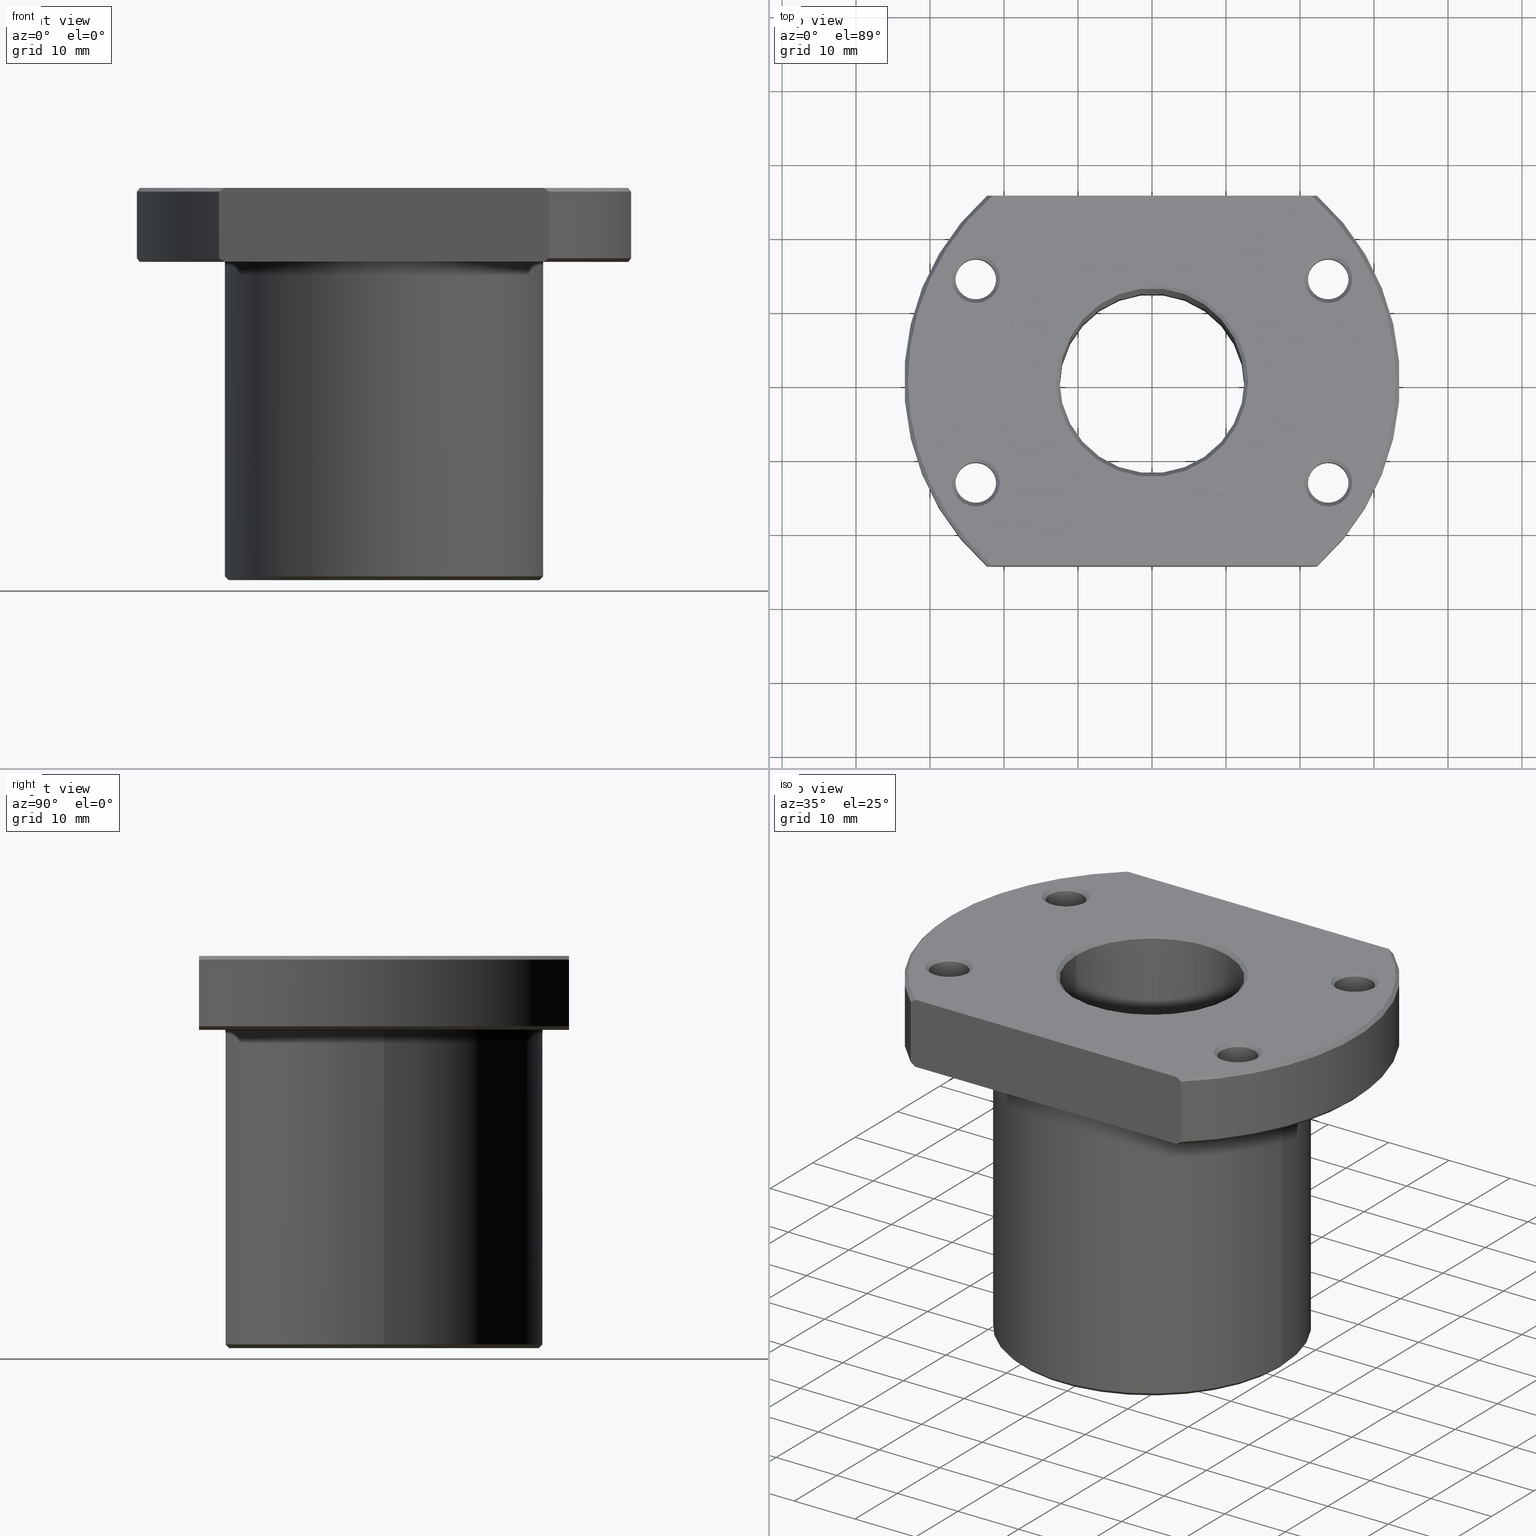
[diagram: canonical four-view strip — front | top / right | iso, engineering-drawing reading convention]
A machine part, canonical four-view strip (front | top / right | iso — engineering-drawing reading convention). The complete STEP part file that produces these views, byte-faithful:
ISO-10303-21;
HEADER;
FILE_DESCRIPTION(('CATIA V5 STEP Exchange'),'2;1');

FILE_NAME('C:\\Documents and Settings\\mycom\\\X2\BC14D0D5\X0\ \X2\D654BA74\X0\\\3D_CAD\\STEP\\STK (STEP)\\2505 STK\\2505 STK.stp','2006-12-14T04:42:36+00:00',('none'),('none'),'CATIA Version 5 Release 16 (IN-10)','CATIA V5 STEP AP214','none');

FILE_SCHEMA(('AUTOMOTIVE_DESIGN { 1 0 10303 214 1 1 1 1 }'));

ENDSEC;
/* file written by CATIA V5R16 */
DATA;
#5=PRODUCT('2505 STK','','',(#2)) ;
#2=PRODUCT_CONTEXT(' ',#1,'mechanical') ;
#1=APPLICATION_CONTEXT('automotive design') ;
#10=PRODUCT_DEFINITION(' ',' ',#6,#3) ;
#3=PRODUCT_DEFINITION_CONTEXT('part definition',#1,' ') ;
#11=PRODUCT_DEFINITION_SHAPE(' ',' ',#10) ;
#1279=MECHANICAL_DESIGN_GEOMETRIC_PRESENTATION_REPRESENTATION(' ',(#203,#227,#1115,#1134,#30),#17) ;
#20=SHAPE_REPRESENTATION(' ',(#19),#17) ;
#19=AXIS2_PLACEMENT_3D(' ',#18,$,$) ;
#35=AXIS2_PLACEMENT_3D('Cylinder Axis2P3D',#32,#33,#34) ;
#48=AXIS2_PLACEMENT_3D('Circle Axis2P3D',#46,#47,$) ;
#62=AXIS2_PLACEMENT_3D('Circle Axis2P3D',#60,#61,$) ;
#74=AXIS2_PLACEMENT_3D('Circle Axis2P3D',#72,#73,$) ;
#79=AXIS2_PLACEMENT_3D('Circle Axis2P3D',#77,#78,$) ;
#92=AXIS2_PLACEMENT_3D('Cone Axis2P3D',#89,#90,#91) ;
#103=AXIS2_PLACEMENT_3D('Circle Axis2P3D',#101,#102,$) ;
#123=AXIS2_PLACEMENT_3D('Cone Axis2P3D',#120,#121,#122) ;
#127=AXIS2_PLACEMENT_3D('Circle Axis2P3D',#125,#126,$) ;
#140=AXIS2_PLACEMENT_3D('Plane Axis2P3D',#137,#138,#139) ;
#148=AXIS2_PLACEMENT_3D('Circle Axis2P3D',#146,#147,$) ;
#157=AXIS2_PLACEMENT_3D('Circle Axis2P3D',#155,#156,$) ;
#168=AXIS2_PLACEMENT_3D('Cone Axis2P3D',#165,#166,#167) ;
#179=AXIS2_PLACEMENT_3D('Circle Axis2P3D',#177,#178,$) ;
#207=AXIS2_PLACEMENT_3D('Cone Axis2P3D',#204,#205,#206) ;
#211=AXIS2_PLACEMENT_3D('Circle Axis2P3D',#209,#210,$) ;
#231=AXIS2_PLACEMENT_3D('Cone Axis2P3D',#228,#229,#230) ;
#244=AXIS2_PLACEMENT_3D('Circle Axis2P3D',#242,#243,$) ;
#258=AXIS2_PLACEMENT_3D('Circle Axis2P3D',#256,#257,$) ;
#271=AXIS2_PLACEMENT_3D('Cone Axis2P3D',#268,#269,#270) ;
#275=AXIS2_PLACEMENT_3D('Circle Axis2P3D',#273,#274,$) ;
#280=AXIS2_PLACEMENT_3D('Circle Axis2P3D',#278,#279,$) ;
#293=AXIS2_PLACEMENT_3D('Cylinder Axis2P3D',#290,#291,#292) ;
#297=AXIS2_PLACEMENT_3D('Circle Axis2P3D',#295,#296,$) ;
#323=AXIS2_PLACEMENT_3D('Circle Axis2P3D',#321,#322,$) ;
#336=AXIS2_PLACEMENT_3D('Cone Axis2P3D',#333,#334,#335) ;
#347=AXIS2_PLACEMENT_3D('Circle Axis2P3D',#345,#346,$) ;
#367=AXIS2_PLACEMENT_3D('Cone Axis2P3D',#364,#365,#366) ;
#371=AXIS2_PLACEMENT_3D('Circle Axis2P3D',#369,#370,$) ;
#384=AXIS2_PLACEMENT_3D('Cone Axis2P3D',#381,#382,#383) ;
#397=AXIS2_PLACEMENT_3D('Circle Axis2P3D',#395,#396,$) ;
#411=AXIS2_PLACEMENT_3D('Circle Axis2P3D',#409,#410,$) ;
#424=AXIS2_PLACEMENT_3D('Cone Axis2P3D',#421,#422,#423) ;
#428=AXIS2_PLACEMENT_3D('Circle Axis2P3D',#426,#427,$) ;
#433=AXIS2_PLACEMENT_3D('Circle Axis2P3D',#431,#432,$) ;
#446=AXIS2_PLACEMENT_3D('Cylinder Axis2P3D',#443,#444,#445) ;
#450=AXIS2_PLACEMENT_3D('Circle Axis2P3D',#448,#449,$) ;
#476=AXIS2_PLACEMENT_3D('Circle Axis2P3D',#474,#475,$) ;
#489=AXIS2_PLACEMENT_3D('Cone Axis2P3D',#486,#487,#488) ;
#500=AXIS2_PLACEMENT_3D('Circle Axis2P3D',#498,#499,$) ;
#520=AXIS2_PLACEMENT_3D('Cone Axis2P3D',#517,#518,#519) ;
#524=AXIS2_PLACEMENT_3D('Circle Axis2P3D',#522,#523,$) ;
#537=AXIS2_PLACEMENT_3D('Cone Axis2P3D',#534,#535,#536) ;
#550=AXIS2_PLACEMENT_3D('Circle Axis2P3D',#548,#549,$) ;
#564=AXIS2_PLACEMENT_3D('Circle Axis2P3D',#562,#563,$) ;
#577=AXIS2_PLACEMENT_3D('Cone Axis2P3D',#574,#575,#576) ;
#581=AXIS2_PLACEMENT_3D('Circle Axis2P3D',#579,#580,$) ;
#586=AXIS2_PLACEMENT_3D('Circle Axis2P3D',#584,#585,$) ;
#599=AXIS2_PLACEMENT_3D('Cylinder Axis2P3D',#596,#597,#598) ;
#603=AXIS2_PLACEMENT_3D('Circle Axis2P3D',#601,#602,$) ;
#629=AXIS2_PLACEMENT_3D('Circle Axis2P3D',#627,#628,$) ;
#642=AXIS2_PLACEMENT_3D('Cone Axis2P3D',#639,#640,#641) ;
#653=AXIS2_PLACEMENT_3D('Circle Axis2P3D',#651,#652,$) ;
#673=AXIS2_PLACEMENT_3D('Cone Axis2P3D',#670,#671,#672) ;
#677=AXIS2_PLACEMENT_3D('Circle Axis2P3D',#675,#676,$) ;
#690=AXIS2_PLACEMENT_3D('Cone Axis2P3D',#687,#688,#689) ;
#703=AXIS2_PLACEMENT_3D('Circle Axis2P3D',#701,#702,$) ;
#717=AXIS2_PLACEMENT_3D('Circle Axis2P3D',#715,#716,$) ;
#730=AXIS2_PLACEMENT_3D('Cone Axis2P3D',#727,#728,#729) ;
#734=AXIS2_PLACEMENT_3D('Circle Axis2P3D',#732,#733,$) ;
#739=AXIS2_PLACEMENT_3D('Circle Axis2P3D',#737,#738,$) ;
#752=AXIS2_PLACEMENT_3D('Cylinder Axis2P3D',#749,#750,#751) ;
#756=AXIS2_PLACEMENT_3D('Circle Axis2P3D',#754,#755,$) ;
#782=AXIS2_PLACEMENT_3D('Circle Axis2P3D',#780,#781,$) ;
#795=AXIS2_PLACEMENT_3D('Cone Axis2P3D',#792,#793,#794) ;
#806=AXIS2_PLACEMENT_3D('Circle Axis2P3D',#804,#805,$) ;
#826=AXIS2_PLACEMENT_3D('Cone Axis2P3D',#823,#824,#825) ;
#830=AXIS2_PLACEMENT_3D('Circle Axis2P3D',#828,#829,$) ;
#843=AXIS2_PLACEMENT_3D('Cone Axis2P3D',#840,#841,#842) ;
#847=AXIS2_PLACEMENT_3D('Circle Axis2P3D',#845,#846,$) ;
#864=AXIS2_PLACEMENT_3D('Circle Axis2P3D',#862,#863,$) ;
#885=AXIS2_PLACEMENT_3D('Cone Axis2P3D',#882,#883,#884) ;
#889=AXIS2_PLACEMENT_3D('Circle Axis2P3D',#887,#888,$) ;
#906=AXIS2_PLACEMENT_3D('Circle Axis2P3D',#904,#905,$) ;
#927=AXIS2_PLACEMENT_3D('Cylinder Axis2P3D',#924,#925,#926) ;
#945=AXIS2_PLACEMENT_3D('Circle Axis2P3D',#943,#944,$) ;
#958=AXIS2_PLACEMENT_3D('Cone Axis2P3D',#955,#956,#957) ;
#978=AXIS2_PLACEMENT_3D('Circle Axis2P3D',#976,#977,$) ;
#991=AXIS2_PLACEMENT_3D('Cylinder Axis2P3D',#988,#989,#990) ;
#995=AXIS2_PLACEMENT_3D('Circle Axis2P3D',#993,#994,$) ;
#1021=AXIS2_PLACEMENT_3D('Circle Axis2P3D',#1019,#1020,$) ;
#1034=AXIS2_PLACEMENT_3D('Plane Axis2P3D',#1031,#1032,#1033) ;
#1054=AXIS2_PLACEMENT_3D('Circle Axis2P3D',#1052,#1053,$) ;
#1063=AXIS2_PLACEMENT_3D('Circle Axis2P3D',#1061,#1062,$) ;
#1090=AXIS2_PLACEMENT_3D('Cone Axis2P3D',#1087,#1088,#1089) ;
#1119=AXIS2_PLACEMENT_3D('Cone Axis2P3D',#1116,#1117,#1118) ;
#1138=AXIS2_PLACEMENT_3D('Cylinder Axis2P3D',#1135,#1136,#1137) ;
#1156=AXIS2_PLACEMENT_3D('Circle Axis2P3D',#1154,#1155,$) ;
#1169=AXIS2_PLACEMENT_3D('Plane Axis2P3D',#1166,#1167,#1168) ;
#1173=AXIS2_PLACEMENT_3D('Circle Axis2P3D',#1171,#1172,$) ;
#1220=AXIS2_PLACEMENT_3D('Plane Axis2P3D',#1217,#1218,#1219) ;
#1244=AXIS2_PLACEMENT_3D('Plane Axis2P3D',#1241,#1242,#1243) ;
#1268=AXIS2_PLACEMENT_3D('Cone Axis2P3D',#1265,#1266,#1267) ;
#18=CARTESIAN_POINT(' ',(0.,0.,0.)) ;
#32=CARTESIAN_POINT('Axis2P3D Location',(0.,0.,21.5)) ;
#37=CARTESIAN_POINT('Line Origine',(-21.5,2.63290366072E-015,21.5)) ;
#41=CARTESIAN_POINT('Vertex',(-21.5,2.63290366072E-015,0.5)) ;
#43=CARTESIAN_POINT('Vertex',(-21.5,2.63290366072E-015,43.)) ;
#46=CARTESIAN_POINT('Axis2P3D Location',(0.,0.,43.)) ;
#50=CARTESIAN_POINT('Vertex',(21.5,0.,43.)) ;
#53=CARTESIAN_POINT('Line Origine',(21.5,0.,21.5)) ;
#57=CARTESIAN_POINT('Vertex',(21.5,-5.26580732144E-015,0.5)) ;
#60=CARTESIAN_POINT('Axis2P3D Location',(0.,0.,0.5)) ;
#72=CARTESIAN_POINT('Axis2P3D Location',(0.,0.,43.)) ;
#77=CARTESIAN_POINT('Axis2P3D Location',(0.,0.,0.5)) ;
#89=CARTESIAN_POINT('Axis2P3D Location',(-1.12798659302E-013,-1.56319401867E-013,-21.)) ;
#94=CARTESIAN_POINT('Line Origine',(21.25,3.19327484428E-015,0.25)) ;
#98=CARTESIAN_POINT('Vertex',(21.,-4.68313674515E-015,0.)) ;
#101=CARTESIAN_POINT('Axis2P3D Location',(-8.881784197E-016,-7.1054273576E-015,1.10134124043E-013)) ;
#105=CARTESIAN_POINT('Vertex',(-21.,7.48480322961E-007,0.)) ;
#108=CARTESIAN_POINT('Line Origine',(-21.25,7.5739080364E-007,0.25)) ;
#120=CARTESIAN_POINT('Axis2P3D Location',(-2.24265050974E-014,-6.07514039075E-013,-21.)) ;
#125=CARTESIAN_POINT('Axis2P3D Location',(-3.77475828373E-015,-1.06581410364E-014,3.5527136788E-014)) ;
#137=CARTESIAN_POINT('Axis2P3D Location',(0.,0.,0.)) ;
#146=CARTESIAN_POINT('Axis2P3D Location',(0.,1.55431223448E-015,0.)) ;
#150=CARTESIAN_POINT('Vertex',(-13.,1.17280859284E-007,0.)) ;
#152=CARTESIAN_POINT('Vertex',(13.,9.91665517064E-015,0.)) ;
#155=CARTESIAN_POINT('Axis2P3D Location',(3.5527136788E-015,1.11022302463E-015,0.)) ;
#165=CARTESIAN_POINT('Axis2P3D Location',(-3.48610029732E-014,4.61852778244E-014,13.)) ;
#170=CARTESIAN_POINT('Line Origine',(-12.75,-3.33066907388E-015,0.25)) ;
#174=CARTESIAN_POINT('Vertex',(-12.5,1.53075794228E-015,0.5)) ;
#177=CARTESIAN_POINT('Axis2P3D Location',(-1.55431223448E-015,1.7763568394E-015,0.5)) ;
#181=CARTESIAN_POINT('Vertex',(12.5,-3.06151588456E-015,0.5)) ;
#184=CARTESIAN_POINT('Line Origine',(12.75,-1.3211653993E-014,0.25)) ;
#204=CARTESIAN_POINT('Axis2P3D Location',(-7.58282325819E-014,-8.881784197E-014,13.)) ;
#209=CARTESIAN_POINT('Axis2P3D Location',(-8.881784197E-016,5.30114528309E-028,0.5)) ;
#228=CARTESIAN_POINT('Axis2P3D Location',(-23.8156986041,13.75,46.25)) ;
#233=CARTESIAN_POINT('Line Origine',(-26.4137748154,15.25,43.25)) ;
#237=CARTESIAN_POINT('Vertex',(-26.6302811579,15.3750000146,43.)) ;
#239=CARTESIAN_POINT('Vertex',(-26.1972684645,15.125,43.5)) ;
#242=CARTESIAN_POINT('Axis2P3D Location',(-23.8156986041,13.75,43.5)) ;
#246=CARTESIAN_POINT('Vertex',(-21.4341287437,12.375,43.5)) ;
#249=CARTESIAN_POINT('Line Origine',(-21.2176223927,12.25,43.25)) ;
#253=CARTESIAN_POINT('Vertex',(-21.0011160418,12.125,43.)) ;
#256=CARTESIAN_POINT('Axis2P3D Location',(-23.8156986041,13.75,43.)) ;
#268=CARTESIAN_POINT('Axis2P3D Location',(-23.8156986041,13.75,46.25)) ;
#273=CARTESIAN_POINT('Axis2P3D Location',(-23.8156986041,13.75,43.5)) ;
#278=CARTESIAN_POINT('Axis2P3D Location',(-23.8156986041,13.75,43.)) ;
#290=CARTESIAN_POINT('Axis2P3D Location',(-23.8156986041,13.75,48.)) ;
#295=CARTESIAN_POINT('Axis2P3D Location',(-23.8156986041,13.75,52.5)) ;
#299=CARTESIAN_POINT('Vertex',(-26.1972684645,15.125,52.5)) ;
#301=CARTESIAN_POINT('Vertex',(-21.4341287437,12.375,52.5)) ;
#304=CARTESIAN_POINT('Line Origine',(-21.4341287437,12.375,48.)) ;
#309=CARTESIAN_POINT('Line Origine',(-26.1972684645,15.125,48.)) ;
#321=CARTESIAN_POINT('Axis2P3D Location',(-23.8156986041,13.75,52.5)) ;
#333=CARTESIAN_POINT('Axis2P3D Location',(-23.8156986041,13.75,49.75)) ;
#338=CARTESIAN_POINT('Line Origine',(-26.4137749772,15.2499997198,52.75)) ;
#342=CARTESIAN_POINT('Vertex',(-26.6302811579,15.3750000146,53.)) ;
#345=CARTESIAN_POINT('Axis2P3D Location',(-23.8156986041,13.75,53.)) ;
#349=CARTESIAN_POINT('Vertex',(-21.0011160418,12.125,53.)) ;
#352=CARTESIAN_POINT('Line Origine',(-21.2176223927,12.25,52.75)) ;
#364=CARTESIAN_POINT('Axis2P3D Location',(-23.8156986041,13.75,49.75)) ;
#369=CARTESIAN_POINT('Axis2P3D Location',(-23.8156986041,13.75,53.)) ;
#381=CARTESIAN_POINT('Axis2P3D Location',(-23.8156986041,-13.75,46.25)) ;
#386=CARTESIAN_POINT('Line Origine',(-26.4137748154,-15.25,43.25)) ;
#390=CARTESIAN_POINT('Vertex',(-26.6302811748,-15.3749999854,43.)) ;
#392=CARTESIAN_POINT('Vertex',(-26.1972684645,-15.125,43.5)) ;
#395=CARTESIAN_POINT('Axis2P3D Location',(-23.8156986041,-13.75,43.5)) ;
#399=CARTESIAN_POINT('Vertex',(-21.4341287437,-12.375,43.5)) ;
#402=CARTESIAN_POINT('Line Origine',(-21.2176223927,-12.25,43.25)) ;
#406=CARTESIAN_POINT('Vertex',(-21.0011160418,-12.125,43.)) ;
#409=CARTESIAN_POINT('Axis2P3D Location',(-23.8156986041,-13.75,43.)) ;
#421=CARTESIAN_POINT('Axis2P3D Location',(-23.8156986041,-13.75,46.25)) ;
#426=CARTESIAN_POINT('Axis2P3D Location',(-23.8156986041,-13.75,43.5)) ;
#431=CARTESIAN_POINT('Axis2P3D Location',(-23.8156986041,-13.75,43.)) ;
#443=CARTESIAN_POINT('Axis2P3D Location',(-23.8156986041,-13.75,48.)) ;
#448=CARTESIAN_POINT('Axis2P3D Location',(-23.8156986041,-13.75,52.5)) ;
#452=CARTESIAN_POINT('Vertex',(-26.1972684645,-15.125,52.5)) ;
#454=CARTESIAN_POINT('Vertex',(-21.4341287437,-12.375,52.5)) ;
#457=CARTESIAN_POINT('Line Origine',(-21.4341287437,-12.375,48.)) ;
#462=CARTESIAN_POINT('Line Origine',(-26.1972684645,-15.125,48.)) ;
#474=CARTESIAN_POINT('Axis2P3D Location',(-23.8156986041,-13.75,52.5)) ;
#486=CARTESIAN_POINT('Axis2P3D Location',(-23.8156986041,-13.75,49.75)) ;
#491=CARTESIAN_POINT('Line Origine',(-26.4137746537,-15.2500002802,52.75)) ;
#495=CARTESIAN_POINT('Vertex',(-26.6302811748,-15.3749999854,53.)) ;
#498=CARTESIAN_POINT('Axis2P3D Location',(-23.8156986041,-13.75,53.)) ;
#502=CARTESIAN_POINT('Vertex',(-21.0011160418,-12.125,53.)) ;
#505=CARTESIAN_POINT('Line Origine',(-21.2176223927,-12.25,52.75)) ;
#517=CARTESIAN_POINT('Axis2P3D Location',(-23.8156986041,-13.75,49.75)) ;
#522=CARTESIAN_POINT('Axis2P3D Location',(-23.8156986041,-13.75,53.)) ;
#534=CARTESIAN_POINT('Axis2P3D Location',(23.8156986041,13.75,46.25)) ;
#539=CARTESIAN_POINT('Line Origine',(26.4137748154,15.25,43.25)) ;
#543=CARTESIAN_POINT('Vertex',(26.6302811748,15.3749999854,43.)) ;
#545=CARTESIAN_POINT('Vertex',(26.1972684645,15.125,43.5)) ;
#548=CARTESIAN_POINT('Axis2P3D Location',(23.8156986041,13.75,43.5)) ;
#552=CARTESIAN_POINT('Vertex',(21.4341287437,12.375,43.5)) ;
#555=CARTESIAN_POINT('Line Origine',(21.2176223927,12.25,43.25)) ;
#559=CARTESIAN_POINT('Vertex',(21.0011160418,12.125,43.)) ;
#562=CARTESIAN_POINT('Axis2P3D Location',(23.8156986041,13.75,43.)) ;
#574=CARTESIAN_POINT('Axis2P3D Location',(23.8156986041,13.75,46.25)) ;
#579=CARTESIAN_POINT('Axis2P3D Location',(23.8156986041,13.75,43.5)) ;
#584=CARTESIAN_POINT('Axis2P3D Location',(23.8156986041,13.75,43.)) ;
#596=CARTESIAN_POINT('Axis2P3D Location',(23.8156986041,13.75,48.)) ;
#601=CARTESIAN_POINT('Axis2P3D Location',(23.8156986041,13.75,52.5)) ;
#605=CARTESIAN_POINT('Vertex',(26.1972684645,15.125,52.5)) ;
#607=CARTESIAN_POINT('Vertex',(21.4341287437,12.375,52.5)) ;
#610=CARTESIAN_POINT('Line Origine',(21.4341287437,12.375,48.)) ;
#615=CARTESIAN_POINT('Line Origine',(26.1972684645,15.125,48.)) ;
#627=CARTESIAN_POINT('Axis2P3D Location',(23.8156986041,13.75,52.5)) ;
#639=CARTESIAN_POINT('Axis2P3D Location',(23.8156986041,13.75,49.75)) ;
#644=CARTESIAN_POINT('Line Origine',(26.4137746537,15.2500002802,52.75)) ;
#648=CARTESIAN_POINT('Vertex',(26.6302811748,15.3749999854,53.)) ;
#651=CARTESIAN_POINT('Axis2P3D Location',(23.8156986041,13.75,53.)) ;
#655=CARTESIAN_POINT('Vertex',(21.0011160418,12.125,53.)) ;
#658=CARTESIAN_POINT('Line Origine',(21.2176223927,12.25,52.75)) ;
#670=CARTESIAN_POINT('Axis2P3D Location',(23.8156986041,13.75,49.75)) ;
#675=CARTESIAN_POINT('Axis2P3D Location',(23.8156986041,13.75,53.)) ;
#687=CARTESIAN_POINT('Axis2P3D Location',(23.8156986041,-13.75,46.25)) ;
#692=CARTESIAN_POINT('Line Origine',(26.4137748154,-15.25,43.25)) ;
#696=CARTESIAN_POINT('Vertex',(26.6302811579,-15.3750000146,43.)) ;
#698=CARTESIAN_POINT('Vertex',(26.1972684645,-15.125,43.5)) ;
#701=CARTESIAN_POINT('Axis2P3D Location',(23.8156986041,-13.75,43.5)) ;
#705=CARTESIAN_POINT('Vertex',(21.4341287437,-12.375,43.5)) ;
#708=CARTESIAN_POINT('Line Origine',(21.2176223927,-12.25,43.25)) ;
#712=CARTESIAN_POINT('Vertex',(21.0011160418,-12.125,43.)) ;
#715=CARTESIAN_POINT('Axis2P3D Location',(23.8156986041,-13.75,43.)) ;
#727=CARTESIAN_POINT('Axis2P3D Location',(23.8156986041,-13.75,46.25)) ;
#732=CARTESIAN_POINT('Axis2P3D Location',(23.8156986041,-13.75,43.5)) ;
#737=CARTESIAN_POINT('Axis2P3D Location',(23.8156986041,-13.75,43.)) ;
#749=CARTESIAN_POINT('Axis2P3D Location',(23.8156986041,-13.75,48.)) ;
#754=CARTESIAN_POINT('Axis2P3D Location',(23.8156986041,-13.75,52.5)) ;
#758=CARTESIAN_POINT('Vertex',(26.1972684645,-15.125,52.5)) ;
#760=CARTESIAN_POINT('Vertex',(21.4341287437,-12.375,52.5)) ;
#763=CARTESIAN_POINT('Line Origine',(21.4341287437,-12.375,48.)) ;
#768=CARTESIAN_POINT('Line Origine',(26.1972684645,-15.125,48.)) ;
#780=CARTESIAN_POINT('Axis2P3D Location',(23.8156986041,-13.75,52.5)) ;
#792=CARTESIAN_POINT('Axis2P3D Location',(23.8156986041,-13.75,49.75)) ;
#797=CARTESIAN_POINT('Line Origine',(26.4137749772,-15.2499997198,52.75)) ;
#801=CARTESIAN_POINT('Vertex',(26.6302811579,-15.3750000146,53.)) ;
#804=CARTESIAN_POINT('Axis2P3D Location',(23.8156986041,-13.75,53.)) ;
#808=CARTESIAN_POINT('Vertex',(21.0011160418,-12.125,53.)) ;
#811=CARTESIAN_POINT('Line Origine',(21.2176223927,-12.25,52.75)) ;
#823=CARTESIAN_POINT('Axis2P3D Location',(23.8156986041,-13.75,49.75)) ;
#828=CARTESIAN_POINT('Axis2P3D Location',(23.8156986041,-13.75,53.)) ;
#840=CARTESIAN_POINT('Axis2P3D Location',(-4.76063632959E-013,2.07905893573E-013,86.)) ;
#845=CARTESIAN_POINT('Axis2P3D Location',(-7.1054273576E-015,2.29080373924E-015,53.)) ;
#849=CARTESIAN_POINT('Vertex',(21.5406592285,-25.,53.)) ;
#851=CARTESIAN_POINT('Vertex',(21.5406592285,25.,53.)) ;
#855=CARTESIAN_POINT('Control Point',(22.299103121,-25.,52.5)) ;
#856=CARTESIAN_POINT('Control Point',(22.0441036981,-25.,52.6697390575)) ;
#857=CARTESIAN_POINT('Control Point',(21.7912863985,-24.9999997418,52.8364039975)) ;
#858=CARTESIAN_POINT('Control Point',(21.5406595282,-24.9999997418,53.)) ;
#859=CARTESIAN_POINT('Vertex',(22.299103121,-25.,52.5)) ;
#862=CARTESIAN_POINT('Axis2P3D Location',(-2.92825168018E-027,-8.24576409755E-016,52.5)) ;
#866=CARTESIAN_POINT('Vertex',(22.299103121,25.,52.5)) ;
#870=CARTESIAN_POINT('Control Point',(22.299103121,25.,52.5)) ;
#871=CARTESIAN_POINT('Control Point',(22.0441034412,25.,52.6697392285)) ;
#872=CARTESIAN_POINT('Control Point',(21.7912860219,25.0000002817,52.8364038391)) ;
#873=CARTESIAN_POINT('Control Point',(21.5406589016,25.0000002817,53.)) ;
#882=CARTESIAN_POINT('Axis2P3D Location',(4.76063632959E-013,-1.39512923184E-013,86.)) ;
#887=CARTESIAN_POINT('Axis2P3D Location',(7.1054273576E-015,5.94509567252E-016,53.)) ;
#891=CARTESIAN_POINT('Vertex',(-21.5406592285,25.,53.)) ;
#893=CARTESIAN_POINT('Vertex',(-21.5406592285,-25.,53.)) ;
#897=CARTESIAN_POINT('Control Point',(-22.299103121,25.,52.5)) ;
#898=CARTESIAN_POINT('Control Point',(-22.0441036981,25.,52.6697390575)) ;
#899=CARTESIAN_POINT('Control Point',(-21.7912863985,24.9999997418,52.8364039975)) ;
#900=CARTESIAN_POINT('Control Point',(-21.5406595282,24.9999997418,53.)) ;
#901=CARTESIAN_POINT('Vertex',(-22.299103121,25.,52.5)) ;
#904=CARTESIAN_POINT('Axis2P3D Location',(3.73604524713E-027,2.71734945743E-015,52.5)) ;
#908=CARTESIAN_POINT('Vertex',(-22.299103121,-25.,52.5)) ;
#912=CARTESIAN_POINT('Control Point',(-22.299103121,-25.,52.5)) ;
#913=CARTESIAN_POINT('Control Point',(-22.0441034412,-25.,52.6697392285)) ;
#914=CARTESIAN_POINT('Control Point',(-21.7912860219,-25.0000002817,52.8364038391)) ;
#915=CARTESIAN_POINT('Control Point',(-21.5406589016,-25.0000002817,53.)) ;
#924=CARTESIAN_POINT('Axis2P3D Location',(0.,0.,48.)) ;
#929=CARTESIAN_POINT('Line Origine',(22.299103121,25.,48.)) ;
#933=CARTESIAN_POINT('Vertex',(22.299103121,25.,43.5)) ;
#936=CARTESIAN_POINT('Line Origine',(22.299103121,-25.,48.)) ;
#940=CARTESIAN_POINT('Vertex',(22.299103121,-25.,43.5)) ;
#943=CARTESIAN_POINT('Axis2P3D Location',(0.,0.,43.5)) ;
#955=CARTESIAN_POINT('Axis2P3D Location',(-4.76063632959E-013,2.07905893573E-013,10.)) ;
#961=CARTESIAN_POINT('Control Point',(22.2991034477,24.9999997086,43.5)) ;
#962=CARTESIAN_POINT('Control Point',(22.0441037667,24.9999997086,43.3302607682)) ;
#963=CARTESIAN_POINT('Control Point',(21.79128635,25.,43.1635961642)) ;
#964=CARTESIAN_POINT('Control Point',(21.5406592285,25.,43.)) ;
#965=CARTESIAN_POINT('Vertex',(21.5406592285,25.,43.)) ;
#969=CARTESIAN_POINT('Control Point',(22.2991028211,-25.0000002675,43.5)) ;
#970=CARTESIAN_POINT('Control Point',(22.0441033996,-25.0000002675,43.3302609457)) ;
#971=CARTESIAN_POINT('Control Point',(21.7912860975,-25.,43.1635959994)) ;
#972=CARTESIAN_POINT('Control Point',(21.5406592285,-25.,43.)) ;
#973=CARTESIAN_POINT('Vertex',(21.5406592285,-25.,43.)) ;
#976=CARTESIAN_POINT('Axis2P3D Location',(-7.1054273576E-015,2.29080373924E-015,43.)) ;
#988=CARTESIAN_POINT('Axis2P3D Location',(0.,0.,21.5)) ;
#993=CARTESIAN_POINT('Axis2P3D Location',(0.,0.,52.5)) ;
#997=CARTESIAN_POINT('Vertex',(12.5,-3.06151588456E-015,52.5)) ;
#999=CARTESIAN_POINT('Vertex',(-12.5,1.53075794228E-015,52.5)) ;
#1002=CARTESIAN_POINT('Line Origine',(-12.5,1.53075794228E-015,43.)) ;
#1007=CARTESIAN_POINT('Line Origine',(12.5,0.,43.)) ;
#1019=CARTESIAN_POINT('Axis2P3D Location',(0.,0.,52.5)) ;
#1031=CARTESIAN_POINT('Axis2P3D Location',(0.,0.,53.)) ;
#1036=CARTESIAN_POINT('Line Origine',(0.,-25.,53.)) ;
#1041=CARTESIAN_POINT('Line Origine',(3.5527136788E-015,25.,53.)) ;
#1052=CARTESIAN_POINT('Axis2P3D Location',(3.5527136788E-015,1.11022302463E-015,53.)) ;
#1056=CARTESIAN_POINT('Vertex',(13.,9.91665517064E-015,53.)) ;
#1058=CARTESIAN_POINT('Vertex',(-13.,1.17280859284E-007,53.)) ;
#1061=CARTESIAN_POINT('Axis2P3D Location',(0.,1.55431223448E-015,53.)) ;
#1087=CARTESIAN_POINT('Axis2P3D Location',(-3.48610029732E-014,4.61852778244E-014,40.)) ;
#1092=CARTESIAN_POINT('Line Origine',(-12.75,3.82071878025E-007,52.75)) ;
#1097=CARTESIAN_POINT('Line Origine',(12.75,3.77475828373E-015,52.75)) ;
#1116=CARTESIAN_POINT('Axis2P3D Location',(-7.58282325819E-014,-8.881784197E-014,40.)) ;
#1135=CARTESIAN_POINT('Axis2P3D Location',(0.,0.,48.)) ;
#1140=CARTESIAN_POINT('Line Origine',(-22.299103121,-25.,48.)) ;
#1144=CARTESIAN_POINT('Vertex',(-22.299103121,-25.,43.5)) ;
#1147=CARTESIAN_POINT('Line Origine',(-22.299103121,25.,48.)) ;
#1151=CARTESIAN_POINT('Vertex',(-22.299103121,25.,43.5)) ;
#1154=CARTESIAN_POINT('Axis2P3D Location',(0.,0.,43.5)) ;
#1166=CARTESIAN_POINT('Axis2P3D Location',(0.,0.,43.)) ;
#1171=CARTESIAN_POINT('Axis2P3D Location',(-7.1054273576E-015,-2.10750563495E-015,43.)) ;
#1175=CARTESIAN_POINT('Vertex',(-21.5406592285,25.,43.)) ;
#1177=CARTESIAN_POINT('Vertex',(-21.5406592285,-25.,43.)) ;
#1180=CARTESIAN_POINT('Line Origine',(3.5527136788E-015,25.,43.)) ;
#1185=CARTESIAN_POINT('Line Origine',(0.,-25.,43.)) ;
#1217=CARTESIAN_POINT('Axis2P3D Location',(-22.299103121,25.,43.)) ;
#1223=CARTESIAN_POINT('Control Point',(-22.299103121,25.,43.5)) ;
#1224=CARTESIAN_POINT('Control Point',(-22.1461034681,25.,43.3981565674)) ;
#1225=CARTESIAN_POINT('Control Point',(-21.9937619802,25.,43.2972376869)) ;
#1226=CARTESIAN_POINT('Control Point',(-21.8420646648,25.,43.197233163)) ;
#1227=CARTESIAN_POINT('Control Point',(-21.6910353499,25.,43.0981575996)) ;
#1228=CARTESIAN_POINT('Control Point',(-21.5406592285,25.,43.)) ;
#1241=CARTESIAN_POINT('Axis2P3D Location',(-22.299103121,-25.,43.)) ;
#1247=CARTESIAN_POINT('Control Point',(-22.299103121,-25.,43.5)) ;
#1248=CARTESIAN_POINT('Control Point',(-22.1461033124,-25.,43.3981564609)) ;
#1249=CARTESIAN_POINT('Control Point',(-21.9937616702,-25.,43.2972374758)) ;
#1250=CARTESIAN_POINT('Control Point',(-21.8420649691,-25.,43.1972333626)) ;
#1251=CARTESIAN_POINT('Control Point',(-21.6910355014,-25.,43.0981576985)) ;
#1252=CARTESIAN_POINT('Control Point',(-21.5406592285,-25.,43.)) ;
#1265=CARTESIAN_POINT('Axis2P3D Location',(0.,9.49661796165E-014,10.)) ;
#33=DIRECTION('Axis2P3D Direction',(0.,0.,1.)) ;
#34=DIRECTION('Axis2P3D XDirection',(1.,0.,0.)) ;
#38=DIRECTION('Vector Direction',(0.,0.,1.)) ;
#47=DIRECTION('Axis2P3D Direction',(0.,0.,1.)) ;
#54=DIRECTION('Vector Direction',(0.,0.,1.)) ;
#61=DIRECTION('Axis2P3D Direction',(0.,0.,1.)) ;
#73=DIRECTION('Axis2P3D Direction',(0.,0.,1.)) ;
#78=DIRECTION('Axis2P3D Direction',(0.,0.,1.)) ;
#90=DIRECTION('Axis2P3D Direction',(5.3290705182E-015,7.1054273576E-015,1.)) ;
#91=DIRECTION('Axis2P3D XDirection',(1.,2.26472814379E-016,-5.26835606386E-015)) ;
#95=DIRECTION('Vector Direction',(0.707106781187,5.3078821359E-015,0.707106781187)) ;
#102=DIRECTION('Axis2P3D Direction',(-1.60918613105E-030,7.1054273576E-015,1.)) ;
#109=DIRECTION('Vector Direction',(-0.707106781187,2.52026486492E-008,0.707106781187)) ;
#121=DIRECTION('Axis2P3D Direction',(8.881784197E-016,2.84217094304E-014,1.)) ;
#122=DIRECTION('Axis2P3D XDirection',(-0.994909428024,0.100773161255,-1.97563352395E-015)) ;
#126=DIRECTION('Axis2P3D Direction',(2.85858502489E-015,2.82221293511E-014,1.)) ;
#138=DIRECTION('Axis2P3D Direction',(0.,0.,1.)) ;
#139=DIRECTION('Axis2P3D XDirection',(1.,0.,0.)) ;
#147=DIRECTION('Axis2P3D Direction',(0.,0.,1.)) ;
#156=DIRECTION('Axis2P3D Direction',(0.,0.,1.)) ;
#166=DIRECTION('Axis2P3D Direction',(2.6645352591E-015,-3.5527136788E-015,-1.)) ;
#167=DIRECTION('Axis2P3D XDirection',(-0.994864896466,0.101211846044,-3.02930473672E-015)) ;
#171=DIRECTION('Vector Direction',(-0.707106781187,-2.51214793389E-015,-0.707106781187)) ;
#178=DIRECTION('Axis2P3D Direction',(3.3043517931E-016,3.2480225715E-015,1.)) ;
#185=DIRECTION('Vector Direction',(0.707106781187,-3.4542034091E-015,-0.707106781187)) ;
#205=DIRECTION('Axis2P3D Direction',(5.99520433298E-015,7.1054273576E-015,-1.)) ;
#206=DIRECTION('Axis2P3D XDirection',(1.,-2.14410362128E-016,6.05860947344E-015)) ;
#210=DIRECTION('Axis2P3D Direction',(-1.52347725282E-030,-7.1054273576E-015,1.)) ;
#229=DIRECTION('Axis2P3D Direction',(1.42108547152E-014,2.87769807983E-013,-1.)) ;
#230=DIRECTION('Axis2P3D XDirection',(-0.649252843782,0.760572642711,2.09680571342E-013)) ;
#234=DIRECTION('Vector Direction',(-0.612372435696,0.353553390594,-0.707106781186)) ;
#243=DIRECTION('Axis2P3D Direction',(-1.50322431925E-013,-1.28320769025E-013,1.)) ;
#250=DIRECTION('Vector Direction',(0.612372435696,-0.353553390593,-0.707106781186)) ;
#257=DIRECTION('Axis2P3D Direction',(-1.50322431925E-013,-1.28320769025E-013,1.)) ;
#269=DIRECTION('Axis2P3D Direction',(-3.33955085807E-013,1.22213350551E-012,-1.)) ;
#270=DIRECTION('Axis2P3D XDirection',(0.866025403784,-0.5,-9.00362051313E-013)) ;
#274=DIRECTION('Axis2P3D Direction',(-4.45710559841E-013,-7.71993335114E-013,1.)) ;
#279=DIRECTION('Axis2P3D Direction',(-4.45710559841E-013,-7.71993335114E-013,1.)) ;
#291=DIRECTION('Axis2P3D Direction',(0.,0.,1.)) ;
#292=DIRECTION('Axis2P3D XDirection',(0.866025403784,-0.5,0.)) ;
#296=DIRECTION('Axis2P3D Direction',(0.,0.,1.)) ;
#305=DIRECTION('Vector Direction',(0.,0.,1.)) ;
#310=DIRECTION('Vector Direction',(0.,0.,1.)) ;
#322=DIRECTION('Axis2P3D Direction',(0.,0.,1.)) ;
#334=DIRECTION('Axis2P3D Direction',(1.42108547152E-014,2.87769807983E-013,1.)) ;
#335=DIRECTION('Axis2P3D XDirection',(-0.649252843782,0.760572642711,-2.09680571342E-013)) ;
#339=DIRECTION('Vector Direction',(-0.612372473821,0.35355332456,0.707106781186)) ;
#346=DIRECTION('Axis2P3D Direction',(1.50322431925E-013,1.28320769025E-013,1.)) ;
#353=DIRECTION('Vector Direction',(0.612372435696,-0.353553390593,0.707106781186)) ;
#365=DIRECTION('Axis2P3D Direction',(-3.33955085807E-013,1.22213350551E-012,1.)) ;
#366=DIRECTION('Axis2P3D XDirection',(0.866025403784,-0.5,9.00362051313E-013)) ;
#370=DIRECTION('Axis2P3D Direction',(4.45710559841E-013,7.71993335114E-013,1.)) ;
#382=DIRECTION('Axis2P3D Direction',(-2.41584530158E-013,1.52766688188E-013,-1.)) ;
#383=DIRECTION('Axis2P3D XDirection',(-0.983301651902,-0.181983134839,2.09812280243E-013)) ;
#387=DIRECTION('Vector Direction',(-0.612372435696,-0.353553390593,-0.707106781186)) ;
#396=DIRECTION('Axis2P3D Direction',(3.53374936724E-014,-1.9093756096E-013,1.)) ;
#403=DIRECTION('Vector Direction',(0.612372435696,0.353553390594,-0.707106781186)) ;
#410=DIRECTION('Axis2P3D Direction',(3.53374936724E-014,-1.9093756096E-013,1.)) ;
#422=DIRECTION('Axis2P3D Direction',(-1.22213350551E-012,3.2684965845E-013,-1.)) ;
#423=DIRECTION('Axis2P3D XDirection',(0.866025403785,0.5,-8.94961986348E-013)) ;
#427=DIRECTION('Axis2P3D Direction',(4.47063430095E-013,-7.7433657513E-013,1.)) ;
#432=DIRECTION('Axis2P3D Direction',(4.47063430095E-013,-7.7433657513E-013,1.)) ;
#444=DIRECTION('Axis2P3D Direction',(0.,0.,1.)) ;
#445=DIRECTION('Axis2P3D XDirection',(0.866025403784,0.5,0.)) ;
#449=DIRECTION('Axis2P3D Direction',(0.,0.,1.)) ;
#458=DIRECTION('Vector Direction',(0.,0.,1.)) ;
#463=DIRECTION('Vector Direction',(0.,0.,1.)) ;
#475=DIRECTION('Axis2P3D Direction',(0.,0.,1.)) ;
#487=DIRECTION('Axis2P3D Direction',(-2.41584530158E-013,1.56319401867E-013,1.)) ;
#488=DIRECTION('Axis2P3D XDirection',(-0.983301651902,-0.181983134839,-2.09153735735E-013)) ;
#492=DIRECTION('Vector Direction',(-0.612372397572,-0.353553456627,0.707106781186)) ;
#499=DIRECTION('Axis2P3D Direction',(-3.59732315955E-014,1.9437261636E-013,1.)) ;
#506=DIRECTION('Vector Direction',(0.612372435696,0.353553390594,0.707106781186)) ;
#518=DIRECTION('Axis2P3D Direction',(-1.22213350551E-012,3.2684965845E-013,1.)) ;
#519=DIRECTION('Axis2P3D XDirection',(0.866025403785,0.5,8.94961986348E-013)) ;
#523=DIRECTION('Axis2P3D Direction',(-4.47063430095E-013,7.7433657513E-013,1.)) ;
#535=DIRECTION('Axis2P3D Direction',(2.41584530158E-013,-1.56319401867E-013,-1.)) ;
#536=DIRECTION('Axis2P3D XDirection',(0.983301651902,0.181983134839,2.09153735735E-013)) ;
#540=DIRECTION('Vector Direction',(0.612372435696,0.353553390593,-0.707106781186)) ;
#549=DIRECTION('Axis2P3D Direction',(-3.59732315955E-014,1.9437261636E-013,1.)) ;
#556=DIRECTION('Vector Direction',(-0.612372435696,-0.353553390594,-0.707106781186)) ;
#563=DIRECTION('Axis2P3D Direction',(-3.59732315955E-014,1.9437261636E-013,1.)) ;
#575=DIRECTION('Axis2P3D Direction',(1.22213350551E-012,-3.19744231092E-013,-1.)) ;
#576=DIRECTION('Axis2P3D XDirection',(-0.866025403785,-0.5,-8.98518126691E-013)) ;
#580=DIRECTION('Axis2P3D Direction',(-4.43986689796E-013,7.69007504612E-013,1.)) ;
#585=DIRECTION('Axis2P3D Direction',(-4.43986689796E-013,7.69007504612E-013,1.)) ;
#597=DIRECTION('Axis2P3D Direction',(0.,0.,1.)) ;
#598=DIRECTION('Axis2P3D XDirection',(-0.866025403784,-0.5,0.)) ;
#602=DIRECTION('Axis2P3D Direction',(0.,0.,1.)) ;
#611=DIRECTION('Vector Direction',(0.,0.,1.)) ;
#616=DIRECTION('Vector Direction',(0.,0.,1.)) ;
#628=DIRECTION('Axis2P3D Direction',(0.,0.,1.)) ;
#640=DIRECTION('Axis2P3D Direction',(2.41584530158E-013,-1.56319401867E-013,1.)) ;
#641=DIRECTION('Axis2P3D XDirection',(0.983301651902,0.181983134839,-2.09153735735E-013)) ;
#645=DIRECTION('Vector Direction',(0.612372397572,0.353553456627,0.707106781186)) ;
#652=DIRECTION('Axis2P3D Direction',(3.59732315955E-014,-1.9437261636E-013,1.)) ;
#659=DIRECTION('Vector Direction',(-0.612372435696,-0.353553390594,0.707106781186)) ;
#671=DIRECTION('Axis2P3D Direction',(1.22213350551E-012,-3.19744231092E-013,1.)) ;
#672=DIRECTION('Axis2P3D XDirection',(-0.866025403785,-0.5,8.98518126691E-013)) ;
#676=DIRECTION('Axis2P3D Direction',(4.43986689796E-013,-7.69007504612E-013,1.)) ;
#688=DIRECTION('Axis2P3D Direction',(-1.42108547152E-014,-2.87769807983E-013,-1.)) ;
#689=DIRECTION('Axis2P3D XDirection',(0.649252843782,-0.760572642711,2.09680571342E-013)) ;
#693=DIRECTION('Vector Direction',(0.612372435696,-0.353553390594,-0.707106781186)) ;
#702=DIRECTION('Axis2P3D Direction',(1.50322431925E-013,1.28320769025E-013,1.)) ;
#709=DIRECTION('Vector Direction',(-0.612372435696,0.353553390593,-0.707106781186)) ;
#716=DIRECTION('Axis2P3D Direction',(1.50322431925E-013,1.28320769025E-013,1.)) ;
#728=DIRECTION('Axis2P3D Direction',(3.2684965845E-013,-1.22213350551E-012,-1.)) ;
#729=DIRECTION('Axis2P3D XDirection',(-0.866025403784,0.5,-8.94171732938E-013)) ;
#733=DIRECTION('Axis2P3D Direction',(4.4748691668E-013,7.75070075413E-013,1.)) ;
#738=DIRECTION('Axis2P3D Direction',(4.4748691668E-013,7.75070075413E-013,1.)) ;
#750=DIRECTION('Axis2P3D Direction',(0.,0.,1.)) ;
#751=DIRECTION('Axis2P3D XDirection',(-0.866025403784,0.5,0.)) ;
#755=DIRECTION('Axis2P3D Direction',(0.,0.,1.)) ;
#764=DIRECTION('Vector Direction',(0.,0.,1.)) ;
#769=DIRECTION('Vector Direction',(0.,0.,1.)) ;
#781=DIRECTION('Axis2P3D Direction',(0.,0.,1.)) ;
#793=DIRECTION('Axis2P3D Direction',(-1.42108547152E-014,-2.87769807983E-013,1.)) ;
#794=DIRECTION('Axis2P3D XDirection',(0.649252843782,-0.760572642711,-2.09680571342E-013)) ;
#798=DIRECTION('Vector Direction',(0.612372473821,-0.35355332456,0.707106781186)) ;
#805=DIRECTION('Axis2P3D Direction',(-1.50322431925E-013,-1.28320769025E-013,1.)) ;
#812=DIRECTION('Vector Direction',(-0.612372435696,0.353553390593,0.707106781186)) ;
#824=DIRECTION('Axis2P3D Direction',(3.2684965845E-013,-1.22213350551E-012,1.)) ;
#825=DIRECTION('Axis2P3D XDirection',(-0.866025403784,0.5,8.94171732938E-013)) ;
#829=DIRECTION('Axis2P3D Direction',(-4.4748691668E-013,-7.75070075413E-013,1.)) ;
#841=DIRECTION('Axis2P3D Direction',(1.42108547152E-014,-6.23076029798E-015,-1.)) ;
#842=DIRECTION('Axis2P3D XDirection',(-0.728768862884,-0.684759771373,-6.19031837504E-015)) ;
#846=DIRECTION('Axis2P3D Direction',(-9.77275842401E-015,1.04008476281E-014,1.)) ;
#863=DIRECTION('Axis2P3D Direction',(-9.77275842401E-015,1.04008476281E-014,1.)) ;
#883=DIRECTION('Axis2P3D Direction',(-1.42108547152E-014,4.24567978035E-015,-1.)) ;
#884=DIRECTION('Axis2P3D XDirection',(0.728768862965,0.684759771287,-7.507407391E-015)) ;
#888=DIRECTION('Axis2P3D Direction',(8.78214051559E-015,-9.34656331506E-015,1.)) ;
#905=DIRECTION('Axis2P3D Direction',(8.78214051559E-015,-9.34656331506E-015,1.)) ;
#925=DIRECTION('Axis2P3D Direction',(0.,0.,1.)) ;
#926=DIRECTION('Axis2P3D XDirection',(0.665644869283,-0.746268656716,0.)) ;
#930=DIRECTION('Vector Direction',(0.,0.,1.)) ;
#937=DIRECTION('Vector Direction',(0.,0.,1.)) ;
#944=DIRECTION('Axis2P3D Direction',(0.,0.,1.)) ;
#956=DIRECTION('Axis2P3D Direction',(1.42108547152E-014,-6.23076029798E-015,1.)) ;
#957=DIRECTION('Axis2P3D XDirection',(-0.728768862884,-0.684759771373,6.19031837504E-015)) ;
#977=DIRECTION('Axis2P3D Direction',(9.77275842401E-015,-1.04008476281E-014,1.)) ;
#989=DIRECTION('Axis2P3D Direction',(0.,0.,1.)) ;
#990=DIRECTION('Axis2P3D XDirection',(1.,0.,0.)) ;
#994=DIRECTION('Axis2P3D Direction',(0.,0.,1.)) ;
#1003=DIRECTION('Vector Direction',(0.,0.,1.)) ;
#1008=DIRECTION('Vector Direction',(0.,0.,1.)) ;
#1020=DIRECTION('Axis2P3D Direction',(0.,0.,1.)) ;
#1032=DIRECTION('Axis2P3D Direction',(0.,0.,1.)) ;
#1033=DIRECTION('Axis2P3D XDirection',(1.,0.,0.)) ;
#1037=DIRECTION('Vector Direction',(1.,0.,0.)) ;
#1042=DIRECTION('Vector Direction',(1.,0.,0.)) ;
#1053=DIRECTION('Axis2P3D Direction',(0.,0.,1.)) ;
#1062=DIRECTION('Axis2P3D Direction',(0.,0.,1.)) ;
#1088=DIRECTION('Axis2P3D Direction',(2.6645352591E-015,-3.5527136788E-015,1.)) ;
#1089=DIRECTION('Axis2P3D XDirection',(-0.994864896466,0.101211846044,3.02930473672E-015)) ;
#1093=DIRECTION('Vector Direction',(-0.707106781187,2.11894575423E-008,0.707106781187)) ;
#1098=DIRECTION('Vector Direction',(0.707106781187,-2.51214793389E-015,0.707106781187)) ;
#1117=DIRECTION('Axis2P3D Direction',(5.99520433298E-015,7.1054273576E-015,1.)) ;
#1118=DIRECTION('Axis2P3D XDirection',(1.,-2.14410362128E-016,-6.05860947344E-015)) ;
#1136=DIRECTION('Axis2P3D Direction',(0.,0.,1.)) ;
#1137=DIRECTION('Axis2P3D XDirection',(-0.665644869283,0.746268656716,0.)) ;
#1141=DIRECTION('Vector Direction',(0.,0.,1.)) ;
#1148=DIRECTION('Vector Direction',(0.,0.,1.)) ;
#1155=DIRECTION('Axis2P3D Direction',(0.,0.,1.)) ;
#1167=DIRECTION('Axis2P3D Direction',(0.,0.,1.)) ;
#1168=DIRECTION('Axis2P3D XDirection',(1.,0.,0.)) ;
#1172=DIRECTION('Axis2P3D Direction',(0.,0.,1.)) ;
#1181=DIRECTION('Vector Direction',(1.,0.,0.)) ;
#1186=DIRECTION('Vector Direction',(1.,0.,0.)) ;
#1218=DIRECTION('Axis2P3D Direction',(0.,-1.,0.)) ;
#1219=DIRECTION('Axis2P3D XDirection',(1.,0.,0.)) ;
#1242=DIRECTION('Axis2P3D Direction',(0.,-1.,0.)) ;
#1243=DIRECTION('Axis2P3D XDirection',(1.,0.,0.)) ;
#1266=DIRECTION('Axis2P3D Direction',(0.,-2.85974757725E-015,1.)) ;
#1267=DIRECTION('Axis2P3D XDirection',(0.728768862976,0.684759771275,1.97563352395E-015)) ;
#8=PRODUCT_RELATED_PRODUCT_CATEGORY('part',$,(#5)) ;
#7=PRODUCT_CATEGORY('part','specification') ;
#30=STYLED_ITEM(' ',(#29),#22) ;
#29=PRESENTATION_STYLE_ASSIGNMENT((#28)) ;
#202=PRESENTATION_STYLE_ASSIGNMENT((#201)) ;
#226=PRESENTATION_STYLE_ASSIGNMENT((#225)) ;
#1114=PRESENTATION_STYLE_ASSIGNMENT((#1113)) ;
#1133=PRESENTATION_STYLE_ASSIGNMENT((#1132)) ;
#28=SURFACE_STYLE_USAGE(.BOTH.,#27) ;
#201=SURFACE_STYLE_USAGE(.BOTH.,#200) ;
#225=SURFACE_STYLE_USAGE(.BOTH.,#224) ;
#1113=SURFACE_STYLE_USAGE(.BOTH.,#1112) ;
#1132=SURFACE_STYLE_USAGE(.BOTH.,#1131) ;
#27=SURFACE_SIDE_STYLE(' ',(#26)) ;
#200=SURFACE_SIDE_STYLE(' ',(#199)) ;
#224=SURFACE_SIDE_STYLE(' ',(#223)) ;
#1112=SURFACE_SIDE_STYLE(' ',(#1111)) ;
#1131=SURFACE_SIDE_STYLE(' ',(#1130)) ;
#26=SURFACE_STYLE_FILL_AREA(#25) ;
#199=SURFACE_STYLE_FILL_AREA(#198) ;
#223=SURFACE_STYLE_FILL_AREA(#222) ;
#1111=SURFACE_STYLE_FILL_AREA(#1110) ;
#1130=SURFACE_STYLE_FILL_AREA(#1129) ;
#25=FILL_AREA_STYLE(' ',(#24)) ;
#198=FILL_AREA_STYLE(' ',(#197)) ;
#222=FILL_AREA_STYLE(' ',(#221)) ;
#1110=FILL_AREA_STYLE(' ',(#1109)) ;
#1129=FILL_AREA_STYLE(' ',(#1128)) ;
#24=FILL_AREA_STYLE_COLOUR(' ',#23) ;
#197=FILL_AREA_STYLE_COLOUR(' ',#196) ;
#221=FILL_AREA_STYLE_COLOUR(' ',#196) ;
#1109=FILL_AREA_STYLE_COLOUR(' ',#196) ;
#1128=FILL_AREA_STYLE_COLOUR(' ',#196) ;
#39=VECTOR('Line Direction',#38,1.) ;
#55=VECTOR('Line Direction',#54,1.) ;
#96=VECTOR('Line Direction',#95,1.) ;
#110=VECTOR('Line Direction',#109,1.) ;
#172=VECTOR('Line Direction',#171,1.) ;
#186=VECTOR('Line Direction',#185,1.) ;
#235=VECTOR('Line Direction',#234,1.) ;
#251=VECTOR('Line Direction',#250,1.) ;
#306=VECTOR('Line Direction',#305,1.) ;
#311=VECTOR('Line Direction',#310,1.) ;
#340=VECTOR('Line Direction',#339,1.) ;
#354=VECTOR('Line Direction',#353,1.) ;
#388=VECTOR('Line Direction',#387,1.) ;
#404=VECTOR('Line Direction',#403,1.) ;
#459=VECTOR('Line Direction',#458,1.) ;
#464=VECTOR('Line Direction',#463,1.) ;
#493=VECTOR('Line Direction',#492,1.) ;
#507=VECTOR('Line Direction',#506,1.) ;
#541=VECTOR('Line Direction',#540,1.) ;
#557=VECTOR('Line Direction',#556,1.) ;
#612=VECTOR('Line Direction',#611,1.) ;
#617=VECTOR('Line Direction',#616,1.) ;
#646=VECTOR('Line Direction',#645,1.) ;
#660=VECTOR('Line Direction',#659,1.) ;
#694=VECTOR('Line Direction',#693,1.) ;
#710=VECTOR('Line Direction',#709,1.) ;
#765=VECTOR('Line Direction',#764,1.) ;
#770=VECTOR('Line Direction',#769,1.) ;
#799=VECTOR('Line Direction',#798,1.) ;
#813=VECTOR('Line Direction',#812,1.) ;
#931=VECTOR('Line Direction',#930,1.) ;
#938=VECTOR('Line Direction',#937,1.) ;
#1004=VECTOR('Line Direction',#1003,1.) ;
#1009=VECTOR('Line Direction',#1008,1.) ;
#1038=VECTOR('Line Direction',#1037,1.) ;
#1043=VECTOR('Line Direction',#1042,1.) ;
#1094=VECTOR('Line Direction',#1093,1.) ;
#1099=VECTOR('Line Direction',#1098,1.) ;
#1142=VECTOR('Line Direction',#1141,1.) ;
#1149=VECTOR('Line Direction',#1148,1.) ;
#1182=VECTOR('Line Direction',#1181,1.) ;
#1187=VECTOR('Line Direction',#1186,1.) ;
#16=UNCERTAINTY_MEASURE_WITH_UNIT(LENGTH_MEASURE(0.005),#12,'distance_accuracy_value','CONFUSED CURVE UNCERTAINTY') ;
#1278=SHAPE_REPRESENTATION_RELATIONSHIP(' ',' ',#20,#1277) ;
#66=ORIENTED_EDGE('',*,*,#45,.T.) ;
#67=ORIENTED_EDGE('',*,*,#52,.F.) ;
#68=ORIENTED_EDGE('',*,*,#59,.F.) ;
#69=ORIENTED_EDGE('',*,*,#64,.T.) ;
#83=ORIENTED_EDGE('',*,*,#59,.T.) ;
#84=ORIENTED_EDGE('',*,*,#76,.F.) ;
#85=ORIENTED_EDGE('',*,*,#45,.F.) ;
#86=ORIENTED_EDGE('',*,*,#81,.T.) ;
#114=ORIENTED_EDGE('',*,*,#100,.T.) ;
#115=ORIENTED_EDGE('',*,*,#107,.T.) ;
#116=ORIENTED_EDGE('',*,*,#112,.F.) ;
#117=ORIENTED_EDGE('',*,*,#64,.F.) ;
#131=ORIENTED_EDGE('',*,*,#112,.T.) ;
#132=ORIENTED_EDGE('',*,*,#129,.T.) ;
#133=ORIENTED_EDGE('',*,*,#100,.F.) ;
#134=ORIENTED_EDGE('',*,*,#81,.F.) ;
#143=ORIENTED_EDGE('',*,*,#129,.F.) ;
#144=ORIENTED_EDGE('',*,*,#107,.F.) ;
#161=ORIENTED_EDGE('',*,*,#154,.T.) ;
#162=ORIENTED_EDGE('',*,*,#159,.T.) ;
#190=ORIENTED_EDGE('',*,*,#176,.T.) ;
#191=ORIENTED_EDGE('',*,*,#183,.T.) ;
#192=ORIENTED_EDGE('',*,*,#188,.F.) ;
#193=ORIENTED_EDGE('',*,*,#154,.F.) ;
#215=ORIENTED_EDGE('',*,*,#188,.T.) ;
#216=ORIENTED_EDGE('',*,*,#213,.T.) ;
#217=ORIENTED_EDGE('',*,*,#176,.F.) ;
#218=ORIENTED_EDGE('',*,*,#159,.F.) ;
#262=ORIENTED_EDGE('',*,*,#241,.T.) ;
#263=ORIENTED_EDGE('',*,*,#248,.T.) ;
#264=ORIENTED_EDGE('',*,*,#255,.F.) ;
#265=ORIENTED_EDGE('',*,*,#260,.F.) ;
#284=ORIENTED_EDGE('',*,*,#255,.T.) ;
#285=ORIENTED_EDGE('',*,*,#277,.T.) ;
#286=ORIENTED_EDGE('',*,*,#241,.F.) ;
#287=ORIENTED_EDGE('',*,*,#282,.F.) ;
#315=ORIENTED_EDGE('',*,*,#303,.T.) ;
#316=ORIENTED_EDGE('',*,*,#308,.F.) ;
#317=ORIENTED_EDGE('',*,*,#248,.F.) ;
#318=ORIENTED_EDGE('',*,*,#313,.T.) ;
#327=ORIENTED_EDGE('',*,*,#325,.T.) ;
#328=ORIENTED_EDGE('',*,*,#313,.F.) ;
#329=ORIENTED_EDGE('',*,*,#277,.F.) ;
#330=ORIENTED_EDGE('',*,*,#308,.T.) ;
#358=ORIENTED_EDGE('',*,*,#344,.T.) ;
#359=ORIENTED_EDGE('',*,*,#351,.T.) ;
#360=ORIENTED_EDGE('',*,*,#356,.F.) ;
#361=ORIENTED_EDGE('',*,*,#303,.F.) ;
#375=ORIENTED_EDGE('',*,*,#356,.T.) ;
#376=ORIENTED_EDGE('',*,*,#373,.T.) ;
#377=ORIENTED_EDGE('',*,*,#344,.F.) ;
#378=ORIENTED_EDGE('',*,*,#325,.F.) ;
#415=ORIENTED_EDGE('',*,*,#394,.T.) ;
#416=ORIENTED_EDGE('',*,*,#401,.T.) ;
#417=ORIENTED_EDGE('',*,*,#408,.F.) ;
#418=ORIENTED_EDGE('',*,*,#413,.F.) ;
#437=ORIENTED_EDGE('',*,*,#408,.T.) ;
#438=ORIENTED_EDGE('',*,*,#430,.T.) ;
#439=ORIENTED_EDGE('',*,*,#394,.F.) ;
#440=ORIENTED_EDGE('',*,*,#435,.F.) ;
#468=ORIENTED_EDGE('',*,*,#456,.T.) ;
#469=ORIENTED_EDGE('',*,*,#461,.F.) ;
#470=ORIENTED_EDGE('',*,*,#401,.F.) ;
#471=ORIENTED_EDGE('',*,*,#466,.T.) ;
#480=ORIENTED_EDGE('',*,*,#478,.T.) ;
#481=ORIENTED_EDGE('',*,*,#466,.F.) ;
#482=ORIENTED_EDGE('',*,*,#430,.F.) ;
#483=ORIENTED_EDGE('',*,*,#461,.T.) ;
#511=ORIENTED_EDGE('',*,*,#497,.T.) ;
#512=ORIENTED_EDGE('',*,*,#504,.T.) ;
#513=ORIENTED_EDGE('',*,*,#509,.F.) ;
#514=ORIENTED_EDGE('',*,*,#456,.F.) ;
#528=ORIENTED_EDGE('',*,*,#509,.T.) ;
#529=ORIENTED_EDGE('',*,*,#526,.T.) ;
#530=ORIENTED_EDGE('',*,*,#497,.F.) ;
#531=ORIENTED_EDGE('',*,*,#478,.F.) ;
#568=ORIENTED_EDGE('',*,*,#547,.T.) ;
#569=ORIENTED_EDGE('',*,*,#554,.T.) ;
#570=ORIENTED_EDGE('',*,*,#561,.F.) ;
#571=ORIENTED_EDGE('',*,*,#566,.F.) ;
#590=ORIENTED_EDGE('',*,*,#561,.T.) ;
#591=ORIENTED_EDGE('',*,*,#583,.T.) ;
#592=ORIENTED_EDGE('',*,*,#547,.F.) ;
#593=ORIENTED_EDGE('',*,*,#588,.F.) ;
#621=ORIENTED_EDGE('',*,*,#609,.T.) ;
#622=ORIENTED_EDGE('',*,*,#614,.F.) ;
#623=ORIENTED_EDGE('',*,*,#554,.F.) ;
#624=ORIENTED_EDGE('',*,*,#619,.T.) ;
#633=ORIENTED_EDGE('',*,*,#631,.T.) ;
#634=ORIENTED_EDGE('',*,*,#619,.F.) ;
#635=ORIENTED_EDGE('',*,*,#583,.F.) ;
#636=ORIENTED_EDGE('',*,*,#614,.T.) ;
#664=ORIENTED_EDGE('',*,*,#650,.T.) ;
#665=ORIENTED_EDGE('',*,*,#657,.T.) ;
#666=ORIENTED_EDGE('',*,*,#662,.F.) ;
#667=ORIENTED_EDGE('',*,*,#609,.F.) ;
#681=ORIENTED_EDGE('',*,*,#662,.T.) ;
#682=ORIENTED_EDGE('',*,*,#679,.T.) ;
#683=ORIENTED_EDGE('',*,*,#650,.F.) ;
#684=ORIENTED_EDGE('',*,*,#631,.F.) ;
#721=ORIENTED_EDGE('',*,*,#700,.T.) ;
#722=ORIENTED_EDGE('',*,*,#707,.T.) ;
#723=ORIENTED_EDGE('',*,*,#714,.F.) ;
#724=ORIENTED_EDGE('',*,*,#719,.F.) ;
#743=ORIENTED_EDGE('',*,*,#714,.T.) ;
#744=ORIENTED_EDGE('',*,*,#736,.T.) ;
#745=ORIENTED_EDGE('',*,*,#700,.F.) ;
#746=ORIENTED_EDGE('',*,*,#741,.F.) ;
#774=ORIENTED_EDGE('',*,*,#762,.T.) ;
#775=ORIENTED_EDGE('',*,*,#767,.F.) ;
#776=ORIENTED_EDGE('',*,*,#707,.F.) ;
#777=ORIENTED_EDGE('',*,*,#772,.T.) ;
#786=ORIENTED_EDGE('',*,*,#784,.T.) ;
#787=ORIENTED_EDGE('',*,*,#772,.F.) ;
#788=ORIENTED_EDGE('',*,*,#736,.F.) ;
#789=ORIENTED_EDGE('',*,*,#767,.T.) ;
#817=ORIENTED_EDGE('',*,*,#803,.T.) ;
#818=ORIENTED_EDGE('',*,*,#810,.T.) ;
#819=ORIENTED_EDGE('',*,*,#815,.F.) ;
#820=ORIENTED_EDGE('',*,*,#762,.F.) ;
#834=ORIENTED_EDGE('',*,*,#815,.T.) ;
#835=ORIENTED_EDGE('',*,*,#832,.T.) ;
#836=ORIENTED_EDGE('',*,*,#803,.F.) ;
#837=ORIENTED_EDGE('',*,*,#784,.F.) ;
#876=ORIENTED_EDGE('',*,*,#853,.F.) ;
#877=ORIENTED_EDGE('',*,*,#861,.T.) ;
#878=ORIENTED_EDGE('',*,*,#868,.T.) ;
#879=ORIENTED_EDGE('',*,*,#874,.T.) ;
#918=ORIENTED_EDGE('',*,*,#895,.F.) ;
#919=ORIENTED_EDGE('',*,*,#903,.T.) ;
#920=ORIENTED_EDGE('',*,*,#910,.T.) ;
#921=ORIENTED_EDGE('',*,*,#916,.T.) ;
#949=ORIENTED_EDGE('',*,*,#935,.T.) ;
#950=ORIENTED_EDGE('',*,*,#868,.F.) ;
#951=ORIENTED_EDGE('',*,*,#942,.F.) ;
#952=ORIENTED_EDGE('',*,*,#947,.T.) ;
#982=ORIENTED_EDGE('',*,*,#967,.T.) ;
#983=ORIENTED_EDGE('',*,*,#947,.F.) ;
#984=ORIENTED_EDGE('',*,*,#975,.T.) ;
#985=ORIENTED_EDGE('',*,*,#980,.T.) ;
#1013=ORIENTED_EDGE('',*,*,#1001,.T.) ;
#1014=ORIENTED_EDGE('',*,*,#1006,.F.) ;
#1015=ORIENTED_EDGE('',*,*,#213,.F.) ;
#1016=ORIENTED_EDGE('',*,*,#1011,.T.) ;
#1025=ORIENTED_EDGE('',*,*,#1023,.T.) ;
#1026=ORIENTED_EDGE('',*,*,#1011,.F.) ;
#1027=ORIENTED_EDGE('',*,*,#183,.F.) ;
#1028=ORIENTED_EDGE('',*,*,#1006,.T.) ;
#1047=ORIENTED_EDGE('',*,*,#1040,.T.) ;
#1048=ORIENTED_EDGE('',*,*,#853,.T.) ;
#1049=ORIENTED_EDGE('',*,*,#1045,.T.) ;
#1050=ORIENTED_EDGE('',*,*,#895,.T.) ;
#1067=ORIENTED_EDGE('',*,*,#1060,.F.) ;
#1068=ORIENTED_EDGE('',*,*,#1065,.F.) ;
#1071=ORIENTED_EDGE('',*,*,#832,.F.) ;
#1072=ORIENTED_EDGE('',*,*,#810,.F.) ;
#1075=ORIENTED_EDGE('',*,*,#679,.F.) ;
#1076=ORIENTED_EDGE('',*,*,#657,.F.) ;
#1079=ORIENTED_EDGE('',*,*,#526,.F.) ;
#1080=ORIENTED_EDGE('',*,*,#504,.F.) ;
#1083=ORIENTED_EDGE('',*,*,#373,.F.) ;
#1084=ORIENTED_EDGE('',*,*,#351,.F.) ;
#1103=ORIENTED_EDGE('',*,*,#1096,.T.) ;
#1104=ORIENTED_EDGE('',*,*,#1065,.T.) ;
#1105=ORIENTED_EDGE('',*,*,#1101,.F.) ;
#1106=ORIENTED_EDGE('',*,*,#1023,.F.) ;
#1122=ORIENTED_EDGE('',*,*,#1101,.T.) ;
#1123=ORIENTED_EDGE('',*,*,#1060,.T.) ;
#1124=ORIENTED_EDGE('',*,*,#1096,.F.) ;
#1125=ORIENTED_EDGE('',*,*,#1001,.F.) ;
#1160=ORIENTED_EDGE('',*,*,#1146,.T.) ;
#1161=ORIENTED_EDGE('',*,*,#910,.F.) ;
#1162=ORIENTED_EDGE('',*,*,#1153,.F.) ;
#1163=ORIENTED_EDGE('',*,*,#1158,.T.) ;
#1191=ORIENTED_EDGE('',*,*,#1179,.F.) ;
#1192=ORIENTED_EDGE('',*,*,#1184,.F.) ;
#1193=ORIENTED_EDGE('',*,*,#980,.F.) ;
#1194=ORIENTED_EDGE('',*,*,#1189,.F.) ;
#1197=ORIENTED_EDGE('',*,*,#719,.T.) ;
#1198=ORIENTED_EDGE('',*,*,#741,.T.) ;
#1201=ORIENTED_EDGE('',*,*,#566,.T.) ;
#1202=ORIENTED_EDGE('',*,*,#588,.T.) ;
#1205=ORIENTED_EDGE('',*,*,#413,.T.) ;
#1206=ORIENTED_EDGE('',*,*,#435,.T.) ;
#1209=ORIENTED_EDGE('',*,*,#260,.T.) ;
#1210=ORIENTED_EDGE('',*,*,#282,.T.) ;
#1213=ORIENTED_EDGE('',*,*,#76,.T.) ;
#1214=ORIENTED_EDGE('',*,*,#52,.T.) ;
#1231=ORIENTED_EDGE('',*,*,#1229,.F.) ;
#1232=ORIENTED_EDGE('',*,*,#1153,.T.) ;
#1233=ORIENTED_EDGE('',*,*,#903,.F.) ;
#1234=ORIENTED_EDGE('',*,*,#1045,.F.) ;
#1235=ORIENTED_EDGE('',*,*,#874,.F.) ;
#1236=ORIENTED_EDGE('',*,*,#935,.F.) ;
#1237=ORIENTED_EDGE('',*,*,#967,.F.) ;
#1238=ORIENTED_EDGE('',*,*,#1184,.T.) ;
#1255=ORIENTED_EDGE('',*,*,#1189,.T.) ;
#1256=ORIENTED_EDGE('',*,*,#975,.F.) ;
#1257=ORIENTED_EDGE('',*,*,#942,.T.) ;
#1258=ORIENTED_EDGE('',*,*,#861,.F.) ;
#1259=ORIENTED_EDGE('',*,*,#1040,.F.) ;
#1260=ORIENTED_EDGE('',*,*,#916,.F.) ;
#1261=ORIENTED_EDGE('',*,*,#1146,.F.) ;
#1262=ORIENTED_EDGE('',*,*,#1253,.F.) ;
#1271=ORIENTED_EDGE('',*,*,#1253,.T.) ;
#1272=ORIENTED_EDGE('',*,*,#1158,.F.) ;
#1273=ORIENTED_EDGE('',*,*,#1229,.T.) ;
#1274=ORIENTED_EDGE('',*,*,#1179,.T.) ;
#163=FACE_BOUND('',#160,.T.) ;
#1069=FACE_BOUND('',#1066,.T.) ;
#1073=FACE_BOUND('',#1070,.T.) ;
#1077=FACE_BOUND('',#1074,.T.) ;
#1081=FACE_BOUND('',#1078,.T.) ;
#1085=FACE_BOUND('',#1082,.T.) ;
#1199=FACE_BOUND('',#1196,.T.) ;
#1203=FACE_BOUND('',#1200,.T.) ;
#1207=FACE_BOUND('',#1204,.T.) ;
#1211=FACE_BOUND('',#1208,.T.) ;
#1215=FACE_BOUND('',#1212,.T.) ;
#31=CLOSED_SHELL('Closed Shell',(#71,#88,#119,#136,#164,#195,#220,#267,#289,#320,#332,#363,#380,#420,#442,#473,#485,#516,#533,#573,#595,#626,#638,#669,#686,#726,#748,#779,#791,#822,#839,#881,#923,#954,#987,#1018,#1030,#1086,#1108,#1127,#1165,#1216,#1240,#1264,#1276)) ;
#1277=ADVANCED_BREP_SHAPE_REPRESENTATION('NONE',(#22),#17) ;
#71=ADVANCED_FACE('',(#70),#36,.T.) ;
#88=ADVANCED_FACE('',(#87),#36,.T.) ;
#119=ADVANCED_FACE('',(#118),#93,.T.) ;
#136=ADVANCED_FACE('',(#135),#124,.T.) ;
#164=ADVANCED_FACE('',(#145,#163),#141,.F.) ;
#195=ADVANCED_FACE('',(#194),#169,.F.) ;
#220=ADVANCED_FACE('',(#219),#208,.F.) ;
#267=ADVANCED_FACE('',(#266),#232,.F.) ;
#289=ADVANCED_FACE('',(#288),#272,.F.) ;
#320=ADVANCED_FACE('',(#319),#294,.F.) ;
#332=ADVANCED_FACE('',(#331),#294,.F.) ;
#363=ADVANCED_FACE('',(#362),#337,.F.) ;
#380=ADVANCED_FACE('',(#379),#368,.F.) ;
#420=ADVANCED_FACE('',(#419),#385,.F.) ;
#442=ADVANCED_FACE('',(#441),#425,.F.) ;
#473=ADVANCED_FACE('',(#472),#447,.F.) ;
#485=ADVANCED_FACE('',(#484),#447,.F.) ;
#516=ADVANCED_FACE('',(#515),#490,.F.) ;
#533=ADVANCED_FACE('',(#532),#521,.F.) ;
#573=ADVANCED_FACE('',(#572),#538,.F.) ;
#595=ADVANCED_FACE('',(#594),#578,.F.) ;
#626=ADVANCED_FACE('',(#625),#600,.F.) ;
#638=ADVANCED_FACE('',(#637),#600,.F.) ;
#669=ADVANCED_FACE('',(#668),#643,.F.) ;
#686=ADVANCED_FACE('',(#685),#674,.F.) ;
#726=ADVANCED_FACE('',(#725),#691,.F.) ;
#748=ADVANCED_FACE('',(#747),#731,.F.) ;
#779=ADVANCED_FACE('',(#778),#753,.F.) ;
#791=ADVANCED_FACE('',(#790),#753,.F.) ;
#822=ADVANCED_FACE('',(#821),#796,.F.) ;
#839=ADVANCED_FACE('',(#838),#827,.F.) ;
#881=ADVANCED_FACE('',(#880),#844,.T.) ;
#923=ADVANCED_FACE('',(#922),#886,.T.) ;
#954=ADVANCED_FACE('',(#953),#928,.T.) ;
#987=ADVANCED_FACE('',(#986),#959,.T.) ;
#1018=ADVANCED_FACE('',(#1017),#992,.F.) ;
#1030=ADVANCED_FACE('',(#1029),#992,.F.) ;
#1086=ADVANCED_FACE('',(#1051,#1069,#1073,#1077,#1081,#1085),#1035,.T.) ;
#1108=ADVANCED_FACE('',(#1107),#1091,.F.) ;
#1127=ADVANCED_FACE('',(#1126),#1120,.F.) ;
#1165=ADVANCED_FACE('',(#1164),#1139,.T.) ;
#1216=ADVANCED_FACE('',(#1195,#1199,#1203,#1207,#1211,#1215),#1170,.F.) ;
#1240=ADVANCED_FACE('',(#1239),#1221,.F.) ;
#1264=ADVANCED_FACE('',(#1263),#1245,.T.) ;
#1276=ADVANCED_FACE('',(#1275),#1269,.T.) ;
#4=APPLICATION_PROTOCOL_DEFINITION('international standard','automotive_design',2001,#1) ;
#854=B_SPLINE_CURVE_WITH_KNOTS('',3,(#855,#856,#857,#858),.UNSPECIFIED.,.F.,.U.,(4,4),(0.,2.06574355979),.UNSPECIFIED.) ;
#869=B_SPLINE_CURVE_WITH_KNOTS('',3,(#870,#871,#872,#873),.UNSPECIFIED.,.F.,.U.,(4,4),(0.,2.06574564086),.UNSPECIFIED.) ;
#896=B_SPLINE_CURVE_WITH_KNOTS('',3,(#897,#898,#899,#900),.UNSPECIFIED.,.F.,.U.,(4,4),(0.,2.06574355977),.UNSPECIFIED.) ;
#911=B_SPLINE_CURVE_WITH_KNOTS('',3,(#912,#913,#914,#915),.UNSPECIFIED.,.F.,.U.,(4,4),(0.,2.06574564089),.UNSPECIFIED.) ;
#960=B_SPLINE_CURVE_WITH_KNOTS('',3,(#961,#962,#963,#964),.UNSPECIFIED.,.F.,.U.,(4,4),(0.,2.06574563996),.UNSPECIFIED.) ;
#968=B_SPLINE_CURVE_WITH_KNOTS('',3,(#969,#970,#971,#972),.UNSPECIFIED.,.F.,.U.,(4,4),(0.,2.06574355888),.UNSPECIFIED.) ;
#1222=B_SPLINE_CURVE_WITH_KNOTS('',5,(#1223,#1224,#1225,#1226,#1227,#1228),.UNSPECIFIED.,.F.,.U.,(6,6),(0.,2.06574355888),.UNSPECIFIED.) ;
#1246=B_SPLINE_CURVE_WITH_KNOTS('',5,(#1247,#1248,#1249,#1250,#1251,#1252),.UNSPECIFIED.,.F.,.U.,(6,6),(0.,2.06574563999),.UNSPECIFIED.) ;
#22=MANIFOLD_SOLID_BREP('PartBody',#31) ;
#49=CIRCLE('generated circle',#48,21.5) ;
#63=CIRCLE('generated circle',#62,21.5) ;
#75=CIRCLE('generated circle',#74,21.5) ;
#80=CIRCLE('generated circle',#79,21.5) ;
#104=CIRCLE('generated circle',#103,21.) ;
#128=CIRCLE('generated circle',#127,21.) ;
#149=CIRCLE('generated circle',#148,13.) ;
#158=CIRCLE('generated circle',#157,13.) ;
#180=CIRCLE('generated circle',#179,12.5) ;
#212=CIRCLE('generated circle',#211,12.5) ;
#245=CIRCLE('generated circle',#244,2.75) ;
#259=CIRCLE('generated circle',#258,3.25) ;
#276=CIRCLE('generated circle',#275,2.75) ;
#281=CIRCLE('generated circle',#280,3.25) ;
#298=CIRCLE('generated circle',#297,2.75) ;
#324=CIRCLE('generated circle',#323,2.75) ;
#348=CIRCLE('generated circle',#347,3.25) ;
#372=CIRCLE('generated circle',#371,3.25) ;
#398=CIRCLE('generated circle',#397,2.75) ;
#412=CIRCLE('generated circle',#411,3.25) ;
#429=CIRCLE('generated circle',#428,2.75) ;
#434=CIRCLE('generated circle',#433,3.25) ;
#451=CIRCLE('generated circle',#450,2.75) ;
#477=CIRCLE('generated circle',#476,2.75) ;
#501=CIRCLE('generated circle',#500,3.25) ;
#525=CIRCLE('generated circle',#524,3.25) ;
#551=CIRCLE('generated circle',#550,2.75) ;
#565=CIRCLE('generated circle',#564,3.25) ;
#582=CIRCLE('generated circle',#581,2.75) ;
#587=CIRCLE('generated circle',#586,3.25) ;
#604=CIRCLE('generated circle',#603,2.75) ;
#630=CIRCLE('generated circle',#629,2.75) ;
#654=CIRCLE('generated circle',#653,3.25) ;
#678=CIRCLE('generated circle',#677,3.25) ;
#704=CIRCLE('generated circle',#703,2.75) ;
#718=CIRCLE('generated circle',#717,3.25) ;
#735=CIRCLE('generated circle',#734,2.75) ;
#740=CIRCLE('generated circle',#739,3.25) ;
#757=CIRCLE('generated circle',#756,2.75) ;
#783=CIRCLE('generated circle',#782,2.75) ;
#807=CIRCLE('generated circle',#806,3.25) ;
#831=CIRCLE('generated circle',#830,3.25) ;
#848=CIRCLE('generated circle',#847,33.) ;
#865=CIRCLE('generated circle',#864,33.5) ;
#890=CIRCLE('generated circle',#889,33.) ;
#907=CIRCLE('generated circle',#906,33.5) ;
#946=CIRCLE('generated circle',#945,33.5) ;
#979=CIRCLE('generated circle',#978,33.) ;
#996=CIRCLE('generated circle',#995,12.5) ;
#1022=CIRCLE('generated circle',#1021,12.5) ;
#1055=CIRCLE('generated circle',#1054,13.) ;
#1064=CIRCLE('generated circle',#1063,13.) ;
#1157=CIRCLE('generated circle',#1156,33.5) ;
#1174=CIRCLE('generated circle',#1173,33.) ;
#23=COLOUR_RGB('Colour',0.823529411765,0.823529411765,1.) ;
#93=CONICAL_SURFACE('Cone',#92,0.,0.785398163397) ;
#124=CONICAL_SURFACE('Cone',#123,0.,0.785398163397) ;
#169=CONICAL_SURFACE('Cone',#168,0.,0.785398163397) ;
#208=CONICAL_SURFACE('Cone',#207,0.,0.785398163397) ;
#232=CONICAL_SURFACE('Cone',#231,0.,0.785398163398) ;
#272=CONICAL_SURFACE('Cone',#271,0.,0.785398163398) ;
#337=CONICAL_SURFACE('Cone',#336,0.,0.785398163398) ;
#368=CONICAL_SURFACE('Cone',#367,0.,0.785398163398) ;
#385=CONICAL_SURFACE('Cone',#384,0.,0.785398163398) ;
#425=CONICAL_SURFACE('Cone',#424,0.,0.785398163398) ;
#490=CONICAL_SURFACE('Cone',#489,0.,0.785398163398) ;
#521=CONICAL_SURFACE('Cone',#520,0.,0.785398163398) ;
#538=CONICAL_SURFACE('Cone',#537,0.,0.785398163398) ;
#578=CONICAL_SURFACE('Cone',#577,0.,0.785398163398) ;
#643=CONICAL_SURFACE('Cone',#642,0.,0.785398163398) ;
#674=CONICAL_SURFACE('Cone',#673,0.,0.785398163398) ;
#691=CONICAL_SURFACE('Cone',#690,0.,0.785398163398) ;
#731=CONICAL_SURFACE('Cone',#730,0.,0.785398163398) ;
#796=CONICAL_SURFACE('Cone',#795,0.,0.785398163398) ;
#827=CONICAL_SURFACE('Cone',#826,0.,0.785398163398) ;
#844=CONICAL_SURFACE('Cone',#843,0.,0.785398163397) ;
#886=CONICAL_SURFACE('Cone',#885,0.,0.785398163397) ;
#959=CONICAL_SURFACE('Cone',#958,0.,0.785398163397) ;
#1091=CONICAL_SURFACE('Cone',#1090,0.,0.785398163397) ;
#1120=CONICAL_SURFACE('Cone',#1119,0.,0.785398163397) ;
#1269=CONICAL_SURFACE('Cone',#1268,0.,0.785398163397) ;
#203=OVER_RIDING_STYLED_ITEM(' ',(#202),#195,#30) ;
#227=OVER_RIDING_STYLED_ITEM(' ',(#226),#220,#30) ;
#1115=OVER_RIDING_STYLED_ITEM(' ',(#1114),#1108,#30) ;
#1134=OVER_RIDING_STYLED_ITEM(' ',(#1133),#1127,#30) ;
#36=CYLINDRICAL_SURFACE('generated cylinder',#35,21.5) ;
#294=CYLINDRICAL_SURFACE('generated cylinder',#293,2.75) ;
#447=CYLINDRICAL_SURFACE('generated cylinder',#446,2.75) ;
#600=CYLINDRICAL_SURFACE('generated cylinder',#599,2.75) ;
#753=CYLINDRICAL_SURFACE('generated cylinder',#752,2.75) ;
#928=CYLINDRICAL_SURFACE('generated cylinder',#927,33.5) ;
#992=CYLINDRICAL_SURFACE('generated cylinder',#991,12.5) ;
#1139=CYLINDRICAL_SURFACE('generated cylinder',#1138,33.5) ;
#196=DRAUGHTING_PRE_DEFINED_COLOUR('white') ;
#45=EDGE_CURVE('',#42,#44,#40,.T.) ;
#52=EDGE_CURVE('',#51,#44,#49,.T.) ;
#59=EDGE_CURVE('',#58,#51,#56,.T.) ;
#64=EDGE_CURVE('',#58,#42,#63,.T.) ;
#76=EDGE_CURVE('',#44,#51,#75,.T.) ;
#81=EDGE_CURVE('',#42,#58,#80,.T.) ;
#100=EDGE_CURVE('',#58,#99,#97,.F.) ;
#107=EDGE_CURVE('',#99,#106,#104,.T.) ;
#112=EDGE_CURVE('',#42,#106,#111,.F.) ;
#129=EDGE_CURVE('',#106,#99,#128,.T.) ;
#154=EDGE_CURVE('',#151,#153,#149,.T.) ;
#159=EDGE_CURVE('',#153,#151,#158,.T.) ;
#176=EDGE_CURVE('',#151,#175,#173,.F.) ;
#183=EDGE_CURVE('',#175,#182,#180,.T.) ;
#188=EDGE_CURVE('',#153,#182,#187,.F.) ;
#213=EDGE_CURVE('',#182,#175,#212,.T.) ;
#241=EDGE_CURVE('',#238,#240,#236,.F.) ;
#248=EDGE_CURVE('',#240,#247,#245,.T.) ;
#255=EDGE_CURVE('',#254,#247,#252,.F.) ;
#260=EDGE_CURVE('',#238,#254,#259,.T.) ;
#277=EDGE_CURVE('',#247,#240,#276,.T.) ;
#282=EDGE_CURVE('',#254,#238,#281,.T.) ;
#303=EDGE_CURVE('',#300,#302,#298,.T.) ;
#308=EDGE_CURVE('',#247,#302,#307,.T.) ;
#313=EDGE_CURVE('',#240,#300,#312,.T.) ;
#325=EDGE_CURVE('',#302,#300,#324,.T.) ;
#344=EDGE_CURVE('',#300,#343,#341,.T.) ;
#351=EDGE_CURVE('',#343,#350,#348,.T.) ;
#356=EDGE_CURVE('',#302,#350,#355,.T.) ;
#373=EDGE_CURVE('',#350,#343,#372,.T.) ;
#394=EDGE_CURVE('',#391,#393,#389,.F.) ;
#401=EDGE_CURVE('',#393,#400,#398,.T.) ;
#408=EDGE_CURVE('',#407,#400,#405,.F.) ;
#413=EDGE_CURVE('',#391,#407,#412,.T.) ;
#430=EDGE_CURVE('',#400,#393,#429,.T.) ;
#435=EDGE_CURVE('',#407,#391,#434,.T.) ;
#456=EDGE_CURVE('',#453,#455,#451,.T.) ;
#461=EDGE_CURVE('',#400,#455,#460,.T.) ;
#466=EDGE_CURVE('',#393,#453,#465,.T.) ;
#478=EDGE_CURVE('',#455,#453,#477,.T.) ;
#497=EDGE_CURVE('',#453,#496,#494,.T.) ;
#504=EDGE_CURVE('',#496,#503,#501,.T.) ;
#509=EDGE_CURVE('',#455,#503,#508,.T.) ;
#526=EDGE_CURVE('',#503,#496,#525,.T.) ;
#547=EDGE_CURVE('',#544,#546,#542,.F.) ;
#554=EDGE_CURVE('',#546,#553,#551,.T.) ;
#561=EDGE_CURVE('',#560,#553,#558,.F.) ;
#566=EDGE_CURVE('',#544,#560,#565,.T.) ;
#583=EDGE_CURVE('',#553,#546,#582,.T.) ;
#588=EDGE_CURVE('',#560,#544,#587,.T.) ;
#609=EDGE_CURVE('',#606,#608,#604,.T.) ;
#614=EDGE_CURVE('',#553,#608,#613,.T.) ;
#619=EDGE_CURVE('',#546,#606,#618,.T.) ;
#631=EDGE_CURVE('',#608,#606,#630,.T.) ;
#650=EDGE_CURVE('',#606,#649,#647,.T.) ;
#657=EDGE_CURVE('',#649,#656,#654,.T.) ;
#662=EDGE_CURVE('',#608,#656,#661,.T.) ;
#679=EDGE_CURVE('',#656,#649,#678,.T.) ;
#700=EDGE_CURVE('',#697,#699,#695,.F.) ;
#707=EDGE_CURVE('',#699,#706,#704,.T.) ;
#714=EDGE_CURVE('',#713,#706,#711,.F.) ;
#719=EDGE_CURVE('',#697,#713,#718,.T.) ;
#736=EDGE_CURVE('',#706,#699,#735,.T.) ;
#741=EDGE_CURVE('',#713,#697,#740,.T.) ;
#762=EDGE_CURVE('',#759,#761,#757,.T.) ;
#767=EDGE_CURVE('',#706,#761,#766,.T.) ;
#772=EDGE_CURVE('',#699,#759,#771,.T.) ;
#784=EDGE_CURVE('',#761,#759,#783,.T.) ;
#803=EDGE_CURVE('',#759,#802,#800,.T.) ;
#810=EDGE_CURVE('',#802,#809,#807,.T.) ;
#815=EDGE_CURVE('',#761,#809,#814,.T.) ;
#832=EDGE_CURVE('',#809,#802,#831,.T.) ;
#853=EDGE_CURVE('',#850,#852,#848,.T.) ;
#861=EDGE_CURVE('',#850,#860,#854,.F.) ;
#868=EDGE_CURVE('',#860,#867,#865,.T.) ;
#874=EDGE_CURVE('',#867,#852,#869,.T.) ;
#895=EDGE_CURVE('',#892,#894,#890,.T.) ;
#903=EDGE_CURVE('',#892,#902,#896,.F.) ;
#910=EDGE_CURVE('',#902,#909,#907,.T.) ;
#916=EDGE_CURVE('',#909,#894,#911,.T.) ;
#935=EDGE_CURVE('',#934,#867,#932,.T.) ;
#942=EDGE_CURVE('',#941,#860,#939,.T.) ;
#947=EDGE_CURVE('',#941,#934,#946,.T.) ;
#967=EDGE_CURVE('',#966,#934,#960,.F.) ;
#975=EDGE_CURVE('',#941,#974,#968,.T.) ;
#980=EDGE_CURVE('',#974,#966,#979,.T.) ;
#1001=EDGE_CURVE('',#998,#1000,#996,.T.) ;
#1006=EDGE_CURVE('',#175,#1000,#1005,.T.) ;
#1011=EDGE_CURVE('',#182,#998,#1010,.T.) ;
#1023=EDGE_CURVE('',#1000,#998,#1022,.T.) ;
#1040=EDGE_CURVE('',#894,#850,#1039,.T.) ;
#1045=EDGE_CURVE('',#852,#892,#1044,.F.) ;
#1060=EDGE_CURVE('',#1057,#1059,#1055,.T.) ;
#1065=EDGE_CURVE('',#1059,#1057,#1064,.T.) ;
#1096=EDGE_CURVE('',#1000,#1059,#1095,.T.) ;
#1101=EDGE_CURVE('',#998,#1057,#1100,.T.) ;
#1146=EDGE_CURVE('',#1145,#909,#1143,.T.) ;
#1153=EDGE_CURVE('',#1152,#902,#1150,.T.) ;
#1158=EDGE_CURVE('',#1152,#1145,#1157,.T.) ;
#1179=EDGE_CURVE('',#1176,#1178,#1174,.T.) ;
#1184=EDGE_CURVE('',#966,#1176,#1183,.F.) ;
#1189=EDGE_CURVE('',#1178,#974,#1188,.T.) ;
#1229=EDGE_CURVE('',#1152,#1176,#1222,.T.) ;
#1253=EDGE_CURVE('',#1178,#1145,#1246,.F.) ;
#65=EDGE_LOOP('',(#66,#67,#68,#69)) ;
#82=EDGE_LOOP('',(#83,#84,#85,#86)) ;
#113=EDGE_LOOP('',(#114,#115,#116,#117)) ;
#130=EDGE_LOOP('',(#131,#132,#133,#134)) ;
#142=EDGE_LOOP('',(#143,#144)) ;
#160=EDGE_LOOP('',(#161,#162)) ;
#189=EDGE_LOOP('',(#190,#191,#192,#193)) ;
#214=EDGE_LOOP('',(#215,#216,#217,#218)) ;
#261=EDGE_LOOP('',(#262,#263,#264,#265)) ;
#283=EDGE_LOOP('',(#284,#285,#286,#287)) ;
#314=EDGE_LOOP('',(#315,#316,#317,#318)) ;
#326=EDGE_LOOP('',(#327,#328,#329,#330)) ;
#357=EDGE_LOOP('',(#358,#359,#360,#361)) ;
#374=EDGE_LOOP('',(#375,#376,#377,#378)) ;
#414=EDGE_LOOP('',(#415,#416,#417,#418)) ;
#436=EDGE_LOOP('',(#437,#438,#439,#440)) ;
#467=EDGE_LOOP('',(#468,#469,#470,#471)) ;
#479=EDGE_LOOP('',(#480,#481,#482,#483)) ;
#510=EDGE_LOOP('',(#511,#512,#513,#514)) ;
#527=EDGE_LOOP('',(#528,#529,#530,#531)) ;
#567=EDGE_LOOP('',(#568,#569,#570,#571)) ;
#589=EDGE_LOOP('',(#590,#591,#592,#593)) ;
#620=EDGE_LOOP('',(#621,#622,#623,#624)) ;
#632=EDGE_LOOP('',(#633,#634,#635,#636)) ;
#663=EDGE_LOOP('',(#664,#665,#666,#667)) ;
#680=EDGE_LOOP('',(#681,#682,#683,#684)) ;
#720=EDGE_LOOP('',(#721,#722,#723,#724)) ;
#742=EDGE_LOOP('',(#743,#744,#745,#746)) ;
#773=EDGE_LOOP('',(#774,#775,#776,#777)) ;
#785=EDGE_LOOP('',(#786,#787,#788,#789)) ;
#816=EDGE_LOOP('',(#817,#818,#819,#820)) ;
#833=EDGE_LOOP('',(#834,#835,#836,#837)) ;
#875=EDGE_LOOP('',(#876,#877,#878,#879)) ;
#917=EDGE_LOOP('',(#918,#919,#920,#921)) ;
#948=EDGE_LOOP('',(#949,#950,#951,#952)) ;
#981=EDGE_LOOP('',(#982,#983,#984,#985)) ;
#1012=EDGE_LOOP('',(#1013,#1014,#1015,#1016)) ;
#1024=EDGE_LOOP('',(#1025,#1026,#1027,#1028)) ;
#1046=EDGE_LOOP('',(#1047,#1048,#1049,#1050)) ;
#1066=EDGE_LOOP('',(#1067,#1068)) ;
#1070=EDGE_LOOP('',(#1071,#1072)) ;
#1074=EDGE_LOOP('',(#1075,#1076)) ;
#1078=EDGE_LOOP('',(#1079,#1080)) ;
#1082=EDGE_LOOP('',(#1083,#1084)) ;
#1102=EDGE_LOOP('',(#1103,#1104,#1105,#1106)) ;
#1121=EDGE_LOOP('',(#1122,#1123,#1124,#1125)) ;
#1159=EDGE_LOOP('',(#1160,#1161,#1162,#1163)) ;
#1190=EDGE_LOOP('',(#1191,#1192,#1193,#1194)) ;
#1196=EDGE_LOOP('',(#1197,#1198)) ;
#1200=EDGE_LOOP('',(#1201,#1202)) ;
#1204=EDGE_LOOP('',(#1205,#1206)) ;
#1208=EDGE_LOOP('',(#1209,#1210)) ;
#1212=EDGE_LOOP('',(#1213,#1214)) ;
#1230=EDGE_LOOP('',(#1231,#1232,#1233,#1234,#1235,#1236,#1237,#1238)) ;
#1254=EDGE_LOOP('',(#1255,#1256,#1257,#1258,#1259,#1260,#1261,#1262)) ;
#1270=EDGE_LOOP('',(#1271,#1272,#1273,#1274)) ;
#70=FACE_OUTER_BOUND('',#65,.T.) ;
#87=FACE_OUTER_BOUND('',#82,.T.) ;
#118=FACE_OUTER_BOUND('',#113,.T.) ;
#135=FACE_OUTER_BOUND('',#130,.T.) ;
#145=FACE_OUTER_BOUND('',#142,.T.) ;
#194=FACE_OUTER_BOUND('',#189,.T.) ;
#219=FACE_OUTER_BOUND('',#214,.T.) ;
#266=FACE_OUTER_BOUND('',#261,.T.) ;
#288=FACE_OUTER_BOUND('',#283,.T.) ;
#319=FACE_OUTER_BOUND('',#314,.T.) ;
#331=FACE_OUTER_BOUND('',#326,.T.) ;
#362=FACE_OUTER_BOUND('',#357,.T.) ;
#379=FACE_OUTER_BOUND('',#374,.T.) ;
#419=FACE_OUTER_BOUND('',#414,.T.) ;
#441=FACE_OUTER_BOUND('',#436,.T.) ;
#472=FACE_OUTER_BOUND('',#467,.T.) ;
#484=FACE_OUTER_BOUND('',#479,.T.) ;
#515=FACE_OUTER_BOUND('',#510,.T.) ;
#532=FACE_OUTER_BOUND('',#527,.T.) ;
#572=FACE_OUTER_BOUND('',#567,.T.) ;
#594=FACE_OUTER_BOUND('',#589,.T.) ;
#625=FACE_OUTER_BOUND('',#620,.T.) ;
#637=FACE_OUTER_BOUND('',#632,.T.) ;
#668=FACE_OUTER_BOUND('',#663,.T.) ;
#685=FACE_OUTER_BOUND('',#680,.T.) ;
#725=FACE_OUTER_BOUND('',#720,.T.) ;
#747=FACE_OUTER_BOUND('',#742,.T.) ;
#778=FACE_OUTER_BOUND('',#773,.T.) ;
#790=FACE_OUTER_BOUND('',#785,.T.) ;
#821=FACE_OUTER_BOUND('',#816,.T.) ;
#838=FACE_OUTER_BOUND('',#833,.T.) ;
#880=FACE_OUTER_BOUND('',#875,.T.) ;
#922=FACE_OUTER_BOUND('',#917,.T.) ;
#953=FACE_OUTER_BOUND('',#948,.T.) ;
#986=FACE_OUTER_BOUND('',#981,.T.) ;
#1017=FACE_OUTER_BOUND('',#1012,.T.) ;
#1029=FACE_OUTER_BOUND('',#1024,.T.) ;
#1051=FACE_OUTER_BOUND('',#1046,.T.) ;
#1107=FACE_OUTER_BOUND('',#1102,.T.) ;
#1126=FACE_OUTER_BOUND('',#1121,.T.) ;
#1164=FACE_OUTER_BOUND('',#1159,.T.) ;
#1195=FACE_OUTER_BOUND('',#1190,.T.) ;
#1239=FACE_OUTER_BOUND('',#1230,.T.) ;
#1263=FACE_OUTER_BOUND('',#1254,.T.) ;
#1275=FACE_OUTER_BOUND('',#1270,.T.) ;
#40=LINE('Line',#37,#39) ;
#56=LINE('Line',#53,#55) ;
#97=LINE('Line',#94,#96) ;
#111=LINE('Line',#108,#110) ;
#173=LINE('Line',#170,#172) ;
#187=LINE('Line',#184,#186) ;
#236=LINE('Line',#233,#235) ;
#252=LINE('Line',#249,#251) ;
#307=LINE('Line',#304,#306) ;
#312=LINE('Line',#309,#311) ;
#341=LINE('Line',#338,#340) ;
#355=LINE('Line',#352,#354) ;
#389=LINE('Line',#386,#388) ;
#405=LINE('Line',#402,#404) ;
#460=LINE('Line',#457,#459) ;
#465=LINE('Line',#462,#464) ;
#494=LINE('Line',#491,#493) ;
#508=LINE('Line',#505,#507) ;
#542=LINE('Line',#539,#541) ;
#558=LINE('Line',#555,#557) ;
#613=LINE('Line',#610,#612) ;
#618=LINE('Line',#615,#617) ;
#647=LINE('Line',#644,#646) ;
#661=LINE('Line',#658,#660) ;
#695=LINE('Line',#692,#694) ;
#711=LINE('Line',#708,#710) ;
#766=LINE('Line',#763,#765) ;
#771=LINE('Line',#768,#770) ;
#800=LINE('Line',#797,#799) ;
#814=LINE('Line',#811,#813) ;
#932=LINE('Line',#929,#931) ;
#939=LINE('Line',#936,#938) ;
#1005=LINE('Line',#1002,#1004) ;
#1010=LINE('Line',#1007,#1009) ;
#1039=LINE('Line',#1036,#1038) ;
#1044=LINE('Line',#1041,#1043) ;
#1095=LINE('Line',#1092,#1094) ;
#1100=LINE('Line',#1097,#1099) ;
#1143=LINE('Line',#1140,#1142) ;
#1150=LINE('Line',#1147,#1149) ;
#1183=LINE('Line',#1180,#1182) ;
#1188=LINE('Line',#1185,#1187) ;
#141=PLANE('Plane',#140) ;
#1035=PLANE('Plane',#1034) ;
#1170=PLANE('Plane',#1169) ;
#1221=PLANE('Plane',#1220) ;
#1245=PLANE('Plane',#1244) ;
#14=PLANE_ANGLE_MEASURE_WITH_UNIT(PLANE_ANGLE_MEASURE(0.0174532925199),#13) ;
#9=PRODUCT_CATEGORY_RELATIONSHIP(' ',' ',#7,#8) ;
#6=PRODUCT_DEFINITION_FORMATION_WITH_SPECIFIED_SOURCE('',' ',#5,.NOT_KNOWN.) ;
#21=SHAPE_DEFINITION_REPRESENTATION(#11,#20) ;
#42=VERTEX_POINT('',#41) ;
#44=VERTEX_POINT('',#43) ;
#51=VERTEX_POINT('',#50) ;
#58=VERTEX_POINT('',#57) ;
#99=VERTEX_POINT('',#98) ;
#106=VERTEX_POINT('',#105) ;
#151=VERTEX_POINT('',#150) ;
#153=VERTEX_POINT('',#152) ;
#175=VERTEX_POINT('',#174) ;
#182=VERTEX_POINT('',#181) ;
#238=VERTEX_POINT('',#237) ;
#240=VERTEX_POINT('',#239) ;
#247=VERTEX_POINT('',#246) ;
#254=VERTEX_POINT('',#253) ;
#300=VERTEX_POINT('',#299) ;
#302=VERTEX_POINT('',#301) ;
#343=VERTEX_POINT('',#342) ;
#350=VERTEX_POINT('',#349) ;
#391=VERTEX_POINT('',#390) ;
#393=VERTEX_POINT('',#392) ;
#400=VERTEX_POINT('',#399) ;
#407=VERTEX_POINT('',#406) ;
#453=VERTEX_POINT('',#452) ;
#455=VERTEX_POINT('',#454) ;
#496=VERTEX_POINT('',#495) ;
#503=VERTEX_POINT('',#502) ;
#544=VERTEX_POINT('',#543) ;
#546=VERTEX_POINT('',#545) ;
#553=VERTEX_POINT('',#552) ;
#560=VERTEX_POINT('',#559) ;
#606=VERTEX_POINT('',#605) ;
#608=VERTEX_POINT('',#607) ;
#649=VERTEX_POINT('',#648) ;
#656=VERTEX_POINT('',#655) ;
#697=VERTEX_POINT('',#696) ;
#699=VERTEX_POINT('',#698) ;
#706=VERTEX_POINT('',#705) ;
#713=VERTEX_POINT('',#712) ;
#759=VERTEX_POINT('',#758) ;
#761=VERTEX_POINT('',#760) ;
#802=VERTEX_POINT('',#801) ;
#809=VERTEX_POINT('',#808) ;
#850=VERTEX_POINT('',#849) ;
#852=VERTEX_POINT('',#851) ;
#860=VERTEX_POINT('',#859) ;
#867=VERTEX_POINT('',#866) ;
#892=VERTEX_POINT('',#891) ;
#894=VERTEX_POINT('',#893) ;
#902=VERTEX_POINT('',#901) ;
#909=VERTEX_POINT('',#908) ;
#934=VERTEX_POINT('',#933) ;
#941=VERTEX_POINT('',#940) ;
#966=VERTEX_POINT('',#965) ;
#974=VERTEX_POINT('',#973) ;
#998=VERTEX_POINT('',#997) ;
#1000=VERTEX_POINT('',#999) ;
#1057=VERTEX_POINT('',#1056) ;
#1059=VERTEX_POINT('',#1058) ;
#1145=VERTEX_POINT('',#1144) ;
#1152=VERTEX_POINT('',#1151) ;
#1176=VERTEX_POINT('',#1175) ;
#1178=VERTEX_POINT('',#1177) ;
#12=(LENGTH_UNIT()NAMED_UNIT(*)SI_UNIT(.MILLI.,.METRE.)) ;
#13=(NAMED_UNIT(*)PLANE_ANGLE_UNIT()SI_UNIT($,.RADIAN.)) ;
#15=(NAMED_UNIT(*)SI_UNIT($,.STERADIAN.)SOLID_ANGLE_UNIT()) ;
#17=(GEOMETRIC_REPRESENTATION_CONTEXT(3)GLOBAL_UNCERTAINTY_ASSIGNED_CONTEXT((#16))GLOBAL_UNIT_ASSIGNED_CONTEXT((#12,#13,#15))REPRESENTATION_CONTEXT(' ',' ')) ;
ENDSEC;
END-ISO-10303-21;
